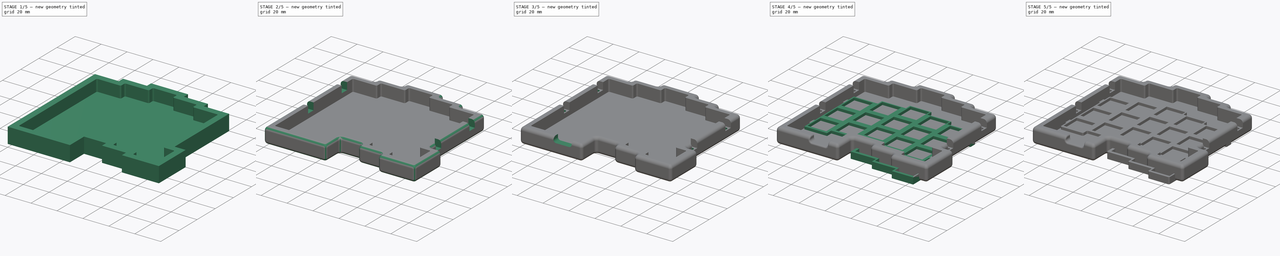
[diagram: build sequence overview — one tinted view per stage of 5, left to right]
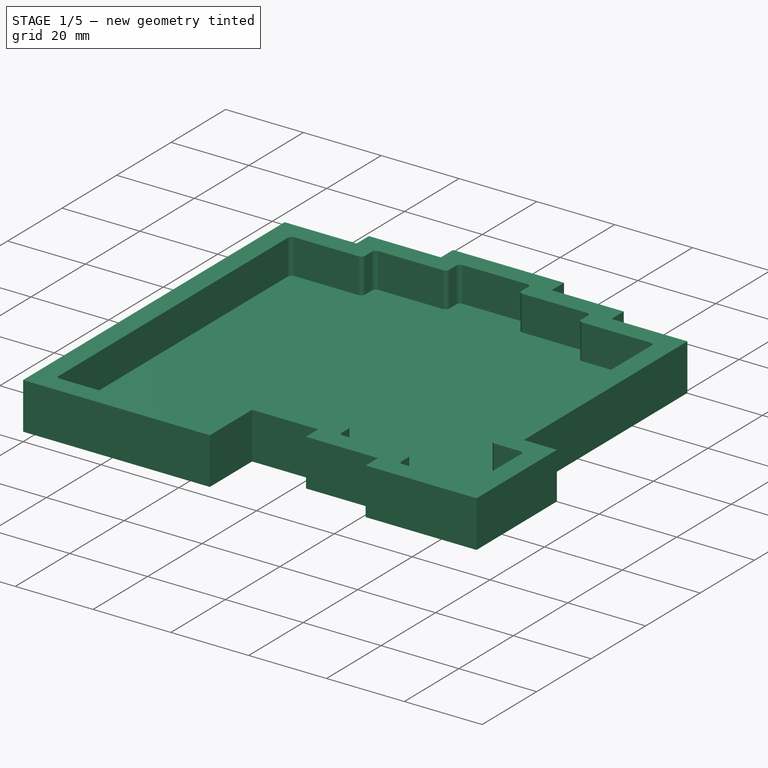
[diagram: stage 1 of 5 — iso view after this stage's code; geometry added in this stage tinted green]
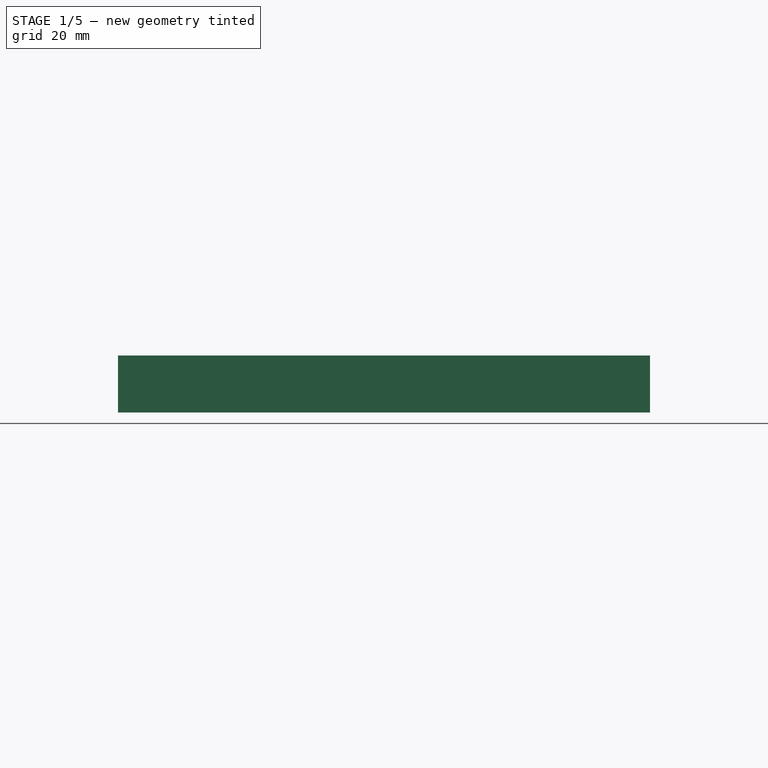
[diagram: stage 1 of 5 — front view after this stage's code; geometry added in this stage tinted green]
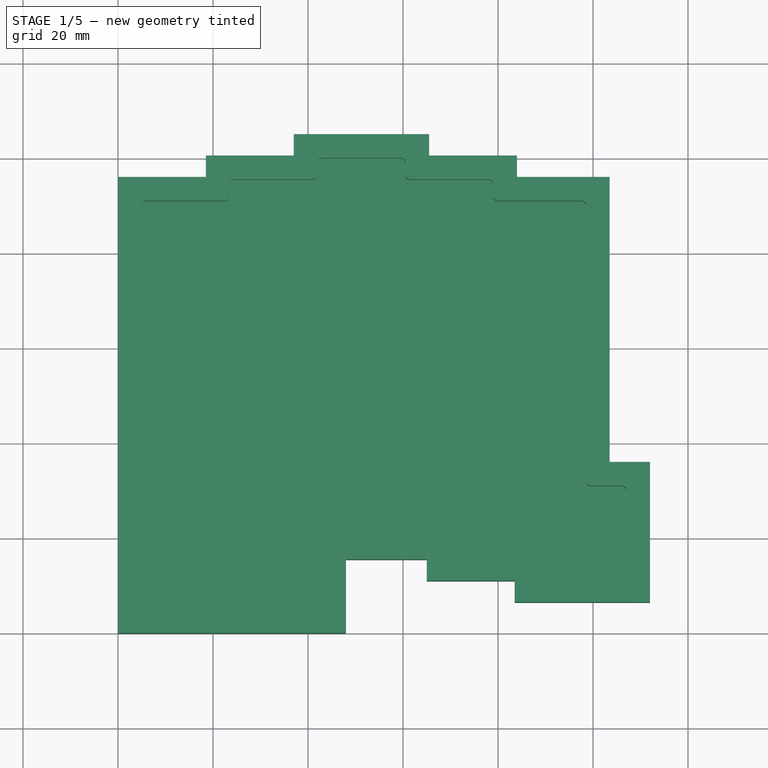
[diagram: stage 1 of 5 — top view after this stage's code; geometry added in this stage tinted green]
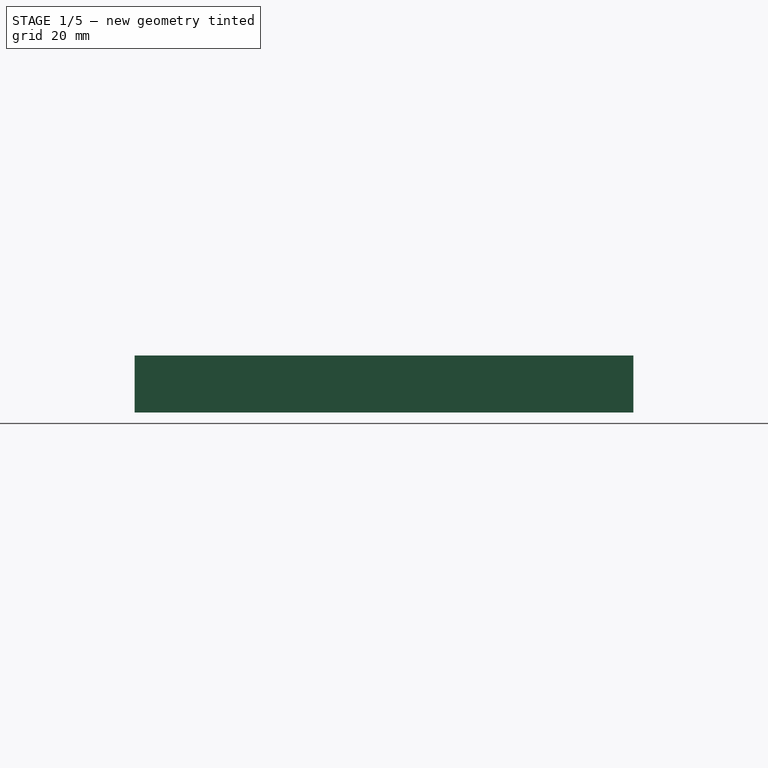
[diagram: stage 1 of 5 — right view after this stage's code; geometry added in this stage tinted green]
FCSTD DOCUMENT  (FreeCAD 0.19R)
Label: cheap03xD
License: All rights reserved
LicenseURL: http://en.wikipedia.org/wiki/All_rights_reserved
objects: Sketcher::SketchObject×9, PartDesign::Pocket×7, PartDesign::Fillet×7, PartDesign::Pad×2, PartDesign::Body×2
note: 43 computed .brp shape members not serialized (recipe doc carries the construction recipe); baked Part::Feature solids carry a one-line shape summary decoded from their .brp

FEATURE [Sketcher::SketchObject] Sketch
  FullyConstrained = true
  MapMode = 5
  Support = -> [XY_Plane]
  expr: Constraints[2] = 84 + 2 + 10
  expr: Constraints[5] = 48
  sketch-geometry (20):
    g0: LineSegment StartX=0 StartY=0 StartZ=0 EndX=0 EndY=96 EndZ=0
    g1: LineSegment StartX=0 StartY=0 StartZ=0 EndX=48 EndY=0 EndZ=0
    g2: LineSegment StartX=48 StartY=0 StartZ=0 EndX=48 EndY=15.5 EndZ=0
    g3: LineSegment StartX=48 StartY=15.5 StartZ=0 EndX=65 EndY=15.5 EndZ=0
    g4: LineSegment StartX=65 StartY=15.5 StartZ=0 EndX=65 EndY=11 EndZ=0
    g5: LineSegment StartX=65 StartY=11 StartZ=0 EndX=83.5 EndY=11 EndZ=0
    g6: LineSegment StartX=83.5 StartY=11 StartZ=0 EndX=83.5 EndY=6.5 EndZ=0
    g7: LineSegment StartX=83.5 StartY=6.5 StartZ=0 EndX=112 EndY=6.5 EndZ=0
    g8: LineSegment StartX=112 StartY=6.5 StartZ=0 EndX=112 EndY=36 EndZ=0
    g9: LineSegment StartX=112 StartY=36 StartZ=0 EndX=103.5 EndY=36 EndZ=0
    g10: LineSegment StartX=103.5 StartY=36 StartZ=0 EndX=103.5 EndY=96 EndZ=0
    g11: LineSegment StartX=103.5 StartY=96 StartZ=0 EndX=84 EndY=96 EndZ=0
    g12: LineSegment StartX=0 StartY=96 StartZ=0 EndX=18.5 EndY=96 EndZ=0
    g13: LineSegment StartX=18.5 StartY=96 StartZ=0 EndX=18.5 EndY=100.5 EndZ=0
    g14: LineSegment StartX=84 StartY=96 StartZ=0 EndX=84 EndY=100.5 EndZ=0
    g15: LineSegment StartX=18.5 StartY=100.5 StartZ=0 EndX=37 EndY=100.5 EndZ=0
    g16: LineSegment StartX=84 StartY=100.5 StartZ=0 EndX=65.5 EndY=100.5 EndZ=0
    g17: LineSegment StartX=37 StartY=100.5 StartZ=0 EndX=37 EndY=105 EndZ=0
    g18: LineSegment StartX=37 StartY=105 StartZ=0 EndX=65.5 EndY=105 EndZ=0
    g19: LineSegment StartX=65.5 StartY=105 StartZ=0 EndX=65.5 EndY=100.5 EndZ=0
  constraints (59):
    c: Coincident(g0,g-1)
    c: Vertical(g0)
    c: DistanceY(g0,g0) = 96
    c: Coincident(g1,g0)
    c: PointOnObject(g1,g-1)
    c: DistanceX(g1,g1) = 48
    c: Coincident(g2,g1)
    c: Vertical(g2)
    c: DistanceY(g2,g2) = 15.5
    c: Coincident(g3,g2)
    c: Horizontal(g3)
    c: DistanceX(g3,g3) = 17
    c: Coincident(g4,g3)
    c: Vertical(g4)
    c: DistanceY(g4,g4) = 4.5
    c: Coincident(g5,g4)
    c: Horizontal(g5)
    c: DistanceX(g5,g5) = 18.5
    c: Coincident(g6,g5)
    c: Vertical(g6)
    c: Equal(g6,g4)
    c: Coincident(g7,g6)
    c: Horizontal(g7)
    c: DistanceX(g7,g7) = 28.5
    c: Coincident(g8,g7)
    c: Vertical(g8)
    c: Coincident(g9,g8)
    c: Horizontal(g9)
    c: DistanceX(g9,g9) = 8.5
    c: Coincident(g10,g9)
    c: Vertical(g10)
    c: DistanceY(g10,g10) = 60
    c: Coincident(g11,g10)
    c: Horizontal(g11)
    c: DistanceX(g11,g11) = 19.5
    c: Coincident(g12,g0)
    c: Horizontal(g12)
    c: DistanceX(g12,g12) = 18.5
    c: Coincident(g13,g12)
    c: Vertical(g13)
    c: Coincident(g14,g11)
    c: Vertical(g14)
    c: Coincident(g15,g13)
    c: Horizontal(g15)
    c: Coincident(g16,g14)
    c: Horizontal(g16)
    c: Coincident(g17,g15)
    c: Vertical(g17)
    c: Coincident(g18,g17)
    c: Horizontal(g18)
    c: Coincident(g19,g18)
    c: Coincident(g19,g16)
    c: Vertical(g19)
    c: Equal(g19,g17)
    c: Equal(g17,g13)
    c: Equal(g13,g4)
    c: DistanceY(g8,g8) = 29.5
    c: Equal(g16,g15)
    c: Equal(g15,g12)
FEATURE [PartDesign::Pad] Pad
  Direction = (1,1,1)
  Length = 12
  Length2 = 100
  Profile = -> Sketch
  Type = 0
FEATURE [Sketcher::SketchObject] Sketch001
  FullyConstrained = true
  MapMode = 5
  Placement = pos=(0,0,12) rot=(0,0,1;0rad)
  Support = -> [Pad]
  sketch-geometry (22):
    g0: LineSegment StartX=0 StartY=0 StartZ=0 EndX=5 EndY=0 EndZ=0
    g1: LineSegment StartX=5 StartY=0 StartZ=0 EndX=5 EndY=5 EndZ=0
    g2: LineSegment StartX=5 StartY=5 StartZ=0 EndX=43 EndY=5 EndZ=0
    g3: LineSegment StartX=43 StartY=5 StartZ=0 EndX=43 EndY=20.5 EndZ=0
    g4: LineSegment StartX=43 StartY=20.5 StartZ=0 EndX=70 EndY=20.5 EndZ=0
    g5: LineSegment StartX=70 StartY=20.5 StartZ=0 EndX=70 EndY=16 EndZ=0
    g6: LineSegment StartX=70 StartY=16 StartZ=0 EndX=88.5 EndY=16 EndZ=0
    g7: LineSegment StartX=88.5 StartY=16 StartZ=0 EndX=88.5 EndY=11.5 EndZ=0
    g8: LineSegment StartX=88.5 StartY=11.5 StartZ=0 EndX=107 EndY=11.5 EndZ=0
    g9: LineSegment StartX=107 StartY=11.5 StartZ=0 EndX=107 EndY=31 EndZ=0
    g10: LineSegment StartX=107 StartY=31 StartZ=0 EndX=98.5 EndY=31 EndZ=0
    g11: LineSegment StartX=98.5 StartY=31 StartZ=0 EndX=98.5 EndY=91 EndZ=0
    g12: LineSegment StartX=98.5 StartY=91 StartZ=0 EndX=79 EndY=91 EndZ=0
    g13: LineSegment StartX=79 StartY=91 StartZ=0 EndX=79 EndY=95.5 EndZ=0
    g14: LineSegment StartX=79 StartY=95.5 StartZ=0 EndX=60.5 EndY=95.5 EndZ=0
    g15: LineSegment StartX=60.5 StartY=95.5 StartZ=0 EndX=60.5 EndY=100 EndZ=0
    g16: LineSegment StartX=60.5 StartY=100 StartZ=0 EndX=42 EndY=100 EndZ=0
    g17: LineSegment StartX=42 StartY=100 StartZ=0 EndX=42 EndY=95.5 EndZ=0
    g18: LineSegment StartX=42 StartY=95.5 StartZ=0 EndX=23.5 EndY=95.5 EndZ=0
    g19: LineSegment StartX=23.5 StartY=95.5 StartZ=0 EndX=23.5 EndY=91 EndZ=0
    g20: LineSegment StartX=23.5 StartY=91 StartZ=0 EndX=5 EndY=91 EndZ=0
    g21: LineSegment StartX=5 StartY=91 StartZ=0 EndX=5 EndY=5 EndZ=0
  constraints (65):
    c: Coincident(g0,g-1)
    c: PointOnObject(g0,g-1)
    c: Coincident(g1,g0)
    c: Vertical(g1)
    c: Equal(g0,g1)
    c: DistanceX(g0,g0) = 5
    c: Coincident(g2,g1)
    c: Horizontal(g2)
    c: DistanceX(g2,g2) = 38
    c: Coincident(g3,g2)
    c: Vertical(g3)
    c: Coincident(g4,g3)
    c: Horizontal(g4)
    c: Coincident(g5,g4)
    c: Vertical(g5)
    c: Coincident(g6,g5)
    c: Horizontal(g6)
    c: Coincident(g7,g6)
    c: Vertical(g7)
    c: Coincident(g8,g7)
    c: Horizontal(g8)
    c: Coincident(g9,g8)
    c: Vertical(g9)
    c: Coincident(g10,g9)
    c: Horizontal(g10)
    c: Coincident(g11,g10)
    c: Vertical(g11)
    c: Coincident(g12,g11)
    c: Horizontal(g12)
    c: Coincident(g13,g12)
    c: Vertical(g13)
    c: Coincident(g14,g13)
    c: Horizontal(g14)
    c: Coincident(g15,g14)
    c: Vertical(g15)
    c: Coincident(g16,g15)
    c: Horizontal(g16)
    c: Coincident(g17,g16)
    c: Vertical(g17)
    c: Coincident(g18,g17)
    c: Horizontal(g18)
    c: Coincident(g19,g18)
    c: Vertical(g19)
    c: Coincident(g20,g19)
    c: Horizontal(g20)
    c: Coincident(g21,g20)
    c: Coincident(g21,g2)
    c: Vertical(g21)
    c: Equal(g5,g7)
    c: Equal(g7,g19)
    c: Equal(g19,g17)
    c: Equal(g17,g15)
    c: Equal(g15,g13)
    c: DistanceY(g19,g19) = 4.5
    c: Equal(g20,g18)
    c: Equal(g18,g14)
    c: Equal(g14,g6)
    c: DistanceY(g3,g3) = 15.5
    c: DistanceX(g4,g4) = 27
    c: DistanceX(g6,g6) = 18.5
    c: Equal(g8,g6)
    c: DistanceY(g9,g9) = 19.5
    c: DistanceX(g10,g10) = 8.5
    c: DistanceY(g11,g11) = 60
    c: DistanceX(g12,g12) = 19.5
FEATURE [PartDesign::Pocket] Pocket
  BaseFeature = -> Pad
  Length = 9
  Length2 = 100
  Profile = -> Sketch001
  Type = 0
FEATURE [PartDesign::Fillet] Fillet
  Base = -> Pocket [Edge116,Edge114,Edge110,Edge106,Edge102,Edge82,Edge112,Edge108,Edge104,Edge100,Edge98,Edge96,Edge94,Edge92,Edge90,Edge88,Edge86,Edge84,Edge81,Edge118]
  BaseFeature = -> Pocket
  Radius = 1
  SupportTransform = false
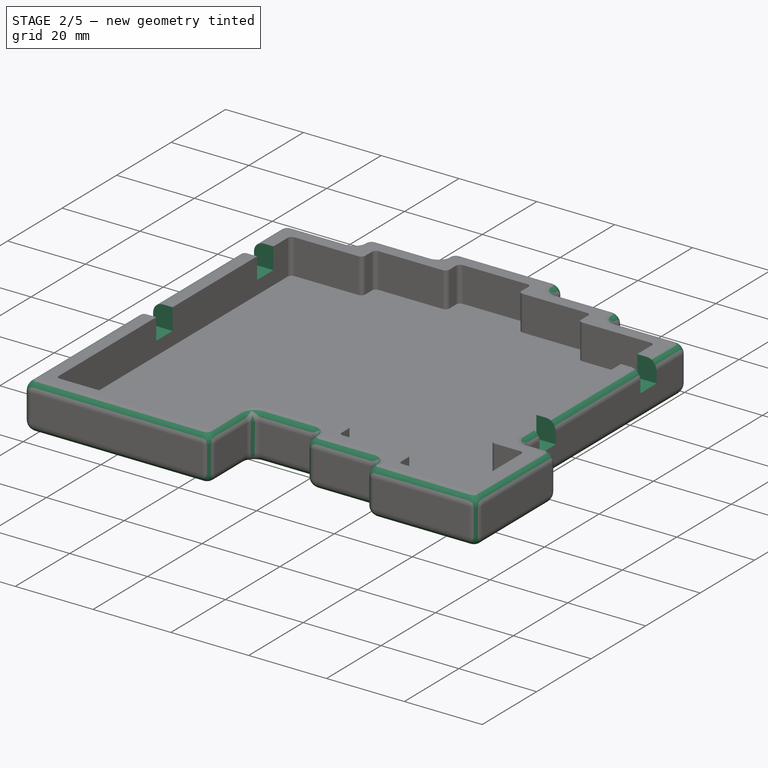
[diagram: stage 2 of 5 — iso view after this stage's code; geometry added in this stage tinted green]
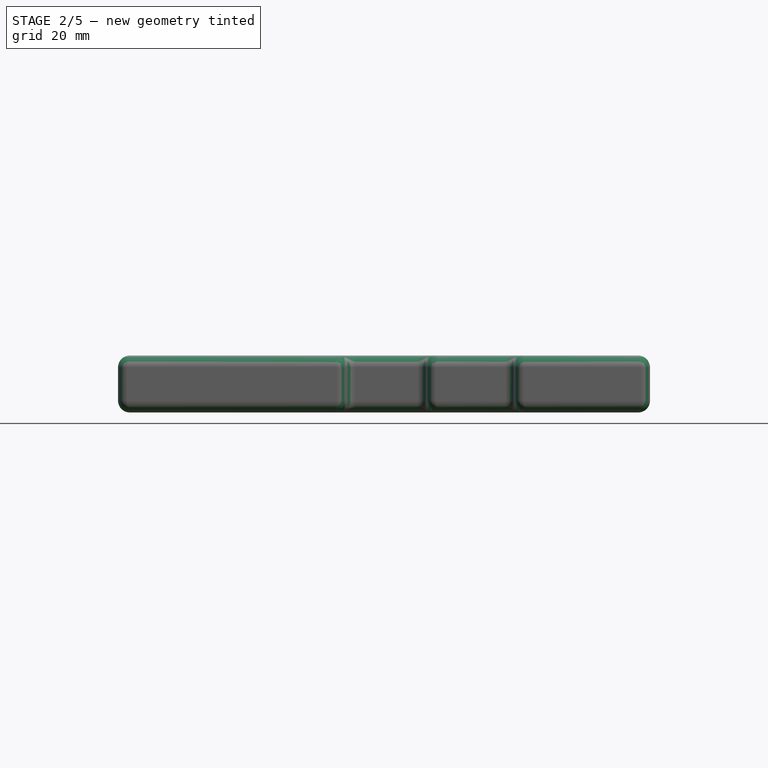
[diagram: stage 2 of 5 — front view after this stage's code; geometry added in this stage tinted green]
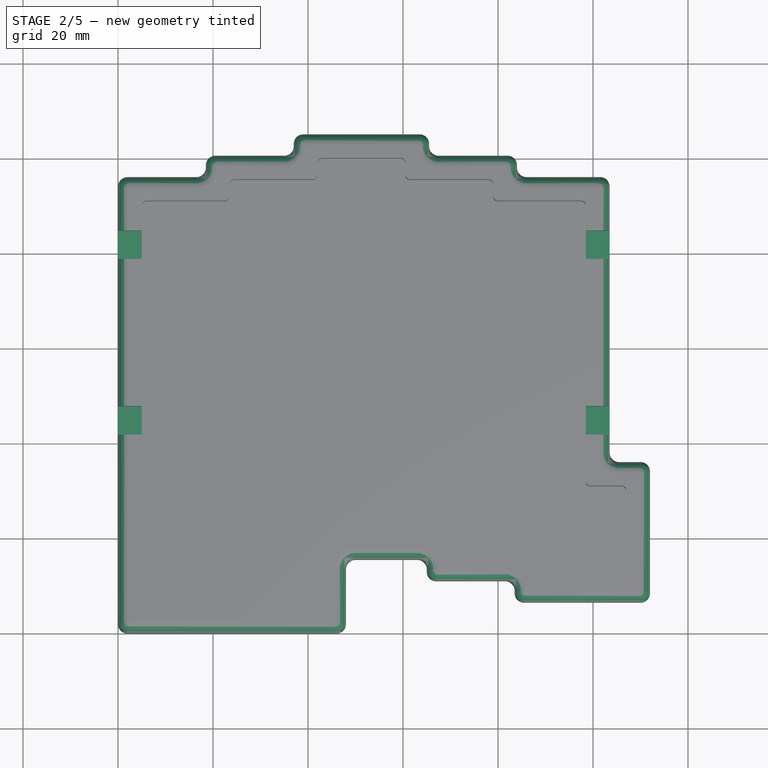
[diagram: stage 2 of 5 — top view after this stage's code; geometry added in this stage tinted green]
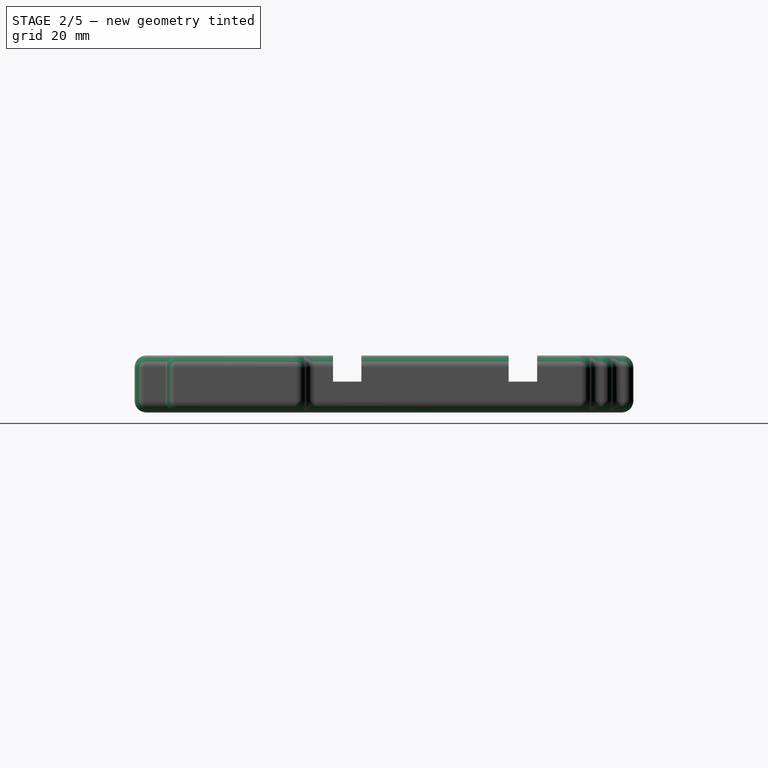
[diagram: stage 2 of 5 — right view after this stage's code; geometry added in this stage tinted green]
FEATURE [PartDesign::Fillet] Fillet001
  Base = -> Fillet [Edge148,Edge152,Edge156,Edge160,Edge164,Edge144,Edge168,Edge141,Edge172,Edge176,Edge178,Edge174,Edge170,Edge166,Edge162,Edge158,Edge154,Edge150,Edge146,Edge142]
  BaseFeature = -> Fillet
  Radius = 2
  SupportTransform = false
FEATURE [PartDesign::Fillet] Fillet002
  Base = -> Fillet001 [Edge28,Edge136]
  BaseFeature = -> Fillet001
  Radius = 2.5
  SupportTransform = false
FEATURE [Sketcher::SketchObject] Sketch002
  FullyConstrained = true
  MapMode = 5
  Placement = pos=(0,0,12) rot=(0,0,1;0rad)
  Support = -> [Fillet002]
  sketch-geometry (30):
    g0: LineSegment StartX=0 StartY=0 StartZ=0 EndX=2.5 EndY=0 EndZ=0
    g1: LineSegment StartX=2.5 StartY=0 StartZ=0 EndX=2.5 EndY=44.75 EndZ=0
    g2: LineSegment StartX=2.5 StartY=44.75 StartZ=0 EndX=2.5 EndY=81.75 EndZ=0
    g3: LineSegment StartX=2.5 StartY=81.75 StartZ=0 EndX=101 EndY=81.75 EndZ=0
    g4: LineSegment StartX=2.5 StartY=44.75 StartZ=0 EndX=101 EndY=44.75 EndZ=0
    g5: LineSegment StartX=98.5 StartY=84.75 StartZ=0 EndX=98.5 EndY=78.75 EndZ=0
    g6: LineSegment StartX=98.5 StartY=78.75 StartZ=0 EndX=103.5 EndY=78.75 EndZ=0
    g7: LineSegment StartX=103.5 StartY=78.75 StartZ=0 EndX=103.5 EndY=84.75 EndZ=0
    g8: LineSegment StartX=98.5 StartY=84.75 StartZ=0 EndX=103.5 EndY=84.75 EndZ=0
    g9: LineSegment StartX=101 StartY=81.75 StartZ=0 EndX=103.5 EndY=84.75 EndZ=0
    g10: LineSegment StartX=101 StartY=81.75 StartZ=0 EndX=103.5 EndY=78.75 EndZ=0
    g11: LineSegment StartX=101 StartY=81.75 StartZ=0 EndX=98.5 EndY=78.75 EndZ=0
    g12: LineSegment StartX=98.5 StartY=41.75 StartZ=0 EndX=98.5 EndY=47.75 EndZ=0
    g13: LineSegment StartX=98.5 StartY=47.75 StartZ=0 EndX=103.5 EndY=47.75 EndZ=0
    g14: LineSegment StartX=98.5 StartY=41.75 StartZ=0 EndX=103.5 EndY=41.75 EndZ=0
    g15: LineSegment StartX=103.5 StartY=41.75 StartZ=0 EndX=103.5 EndY=47.75 EndZ=0
    g16: LineSegment StartX=101 StartY=44.75 StartZ=0 EndX=103.5 EndY=47.75 EndZ=0
    g17: LineSegment StartX=101 StartY=44.75 StartZ=0 EndX=103.5 EndY=41.75 EndZ=0
    g18: LineSegment StartX=3e-16 StartY=47.75 StartZ=0 EndX=5 EndY=47.75 EndZ=0
    g19: LineSegment StartX=5 StartY=47.75 StartZ=0 EndX=5 EndY=41.75 EndZ=0
    g20: LineSegment StartX=5 StartY=41.75 StartZ=0 EndX=0 EndY=41.75 EndZ=0
    g21: LineSegment StartX=3e-16 StartY=41.75 StartZ=0 EndX=3e-16 EndY=47.75 EndZ=0
    g22: LineSegment StartX=2.5 StartY=44.75 StartZ=0 EndX=5 EndY=47.75 EndZ=0
    g23: LineSegment StartX=2.5 StartY=44.75 StartZ=0 EndX=5 EndY=41.75 EndZ=0
    g24: LineSegment StartX=3.1e-15 StartY=84.75 StartZ=0 EndX=5 EndY=84.75 EndZ=0
    g25: LineSegment StartX=5 StartY=84.75 StartZ=0 EndX=5 EndY=78.75 EndZ=0
    g26: LineSegment StartX=5 StartY=78.75 StartZ=0 EndX=2.7e-15 EndY=78.75 EndZ=0
    g27: LineSegment StartX=3.1e-15 StartY=78.75 StartZ=0 EndX=3.1e-15 EndY=84.75 EndZ=0
    g28: LineSegment StartX=2.5 StartY=81.75 StartZ=0 EndX=5 EndY=84.75 EndZ=0
    g29: LineSegment StartX=2.5 StartY=81.75 StartZ=0 EndX=5 EndY=78.75 EndZ=0
  constraints (81):
    c: Coincident(g0,g-1)
    c: PointOnObject(g0,g-1)
    c: DistanceX(g0,g0) = 2.5
    c: Coincident(g1,g0)
    c: Vertical(g1)
    c: DistanceY(g1,g1) = 44.75
    c: Coincident(g2,g1)
    c: Vertical(g2)
    c: DistanceY(g2,g2) = 37
    c: Coincident(g3,g2)
    c: Horizontal(g3)
    c: DistanceX(g3,g3) = 98.5
    c: Coincident(g4,g1)
    c: Horizontal(g4)
    c: Equal(g4,g3)
    c: Vertical(g5)
    c: Coincident(g6,g5)
    c: Horizontal(g6)
    c: Coincident(g7,g6)
    c: Vertical(g7)
    c: Coincident(g8,g5)
    c: Coincident(g8,g7)
    c: Horizontal(g8)
    c: DistanceY(g7,g7) = 6
    c: DistanceX(g6,g6) = 5
    c: Coincident(g9,g3)
    c: Coincident(g9,g7)
    c: Coincident(g10,g3)
    c: Coincident(g10,g6)
    c: Coincident(g11,g3)
    c: Coincident(g11,g5)
    c: Equal(g11,g10)
    c: Equal(g10,g9)
    c: Vertical(g12)
    c: Coincident(g13,g12)
    c: Horizontal(g13)
    c: Coincident(g14,g12)
    c: Horizontal(g14)
    c: Coincident(g15,g14)
    c: Coincident(g15,g13)
    c: Vertical(g15)
    c: Equal(g13,g6)
    c: Equal(g15,g7)
    c: Coincident(g16,g4)
    c: Coincident(g16,g13)
    c: Coincident(g17,g4)
    c: Coincident(g17,g14)
    c: Equal(g17,g16)
    c: Equal(g16,g9)
    c: Horizontal(g18)
    c: Coincident(g19,g18)
    c: Vertical(g19)
    c: Coincident(g20,g19)
    c: Coincident(g21,g20)
    c: Coincident(g21,g18)
    c: Vertical(g21)
    c: Horizontal(g20)
    c: Coincident(g22,g1)
    c: Coincident(g22,g18)
    c: Coincident(g23,g1)
    c: Coincident(g23,g19)
    c: Horizontal(g24)
    c: Coincident(g25,g24)
    c: Vertical(g25)
    c: Coincident(g26,g25)
    c: Horizontal(g26)
    c: Coincident(g27,g26)
    c: Coincident(g27,g24)
    c: Vertical(g27)
    c: Coincident(g28,g2)
    c: Coincident(g28,g24)
    c: Coincident(g29,g2)
    c: Coincident(g29,g25)
    c: Equal(g28,g29)
    c: Equal(g29,g22)
    c: Equal(g22,g23)
    c: Equal(g23,g9)
    c: Equal(g25,g19)
    c: Equal(g19,g15)
    c: Equal(g14,g20)
    c: Equal(g20,g26)
FEATURE [PartDesign::Pocket] Pocket001
  BaseFeature = -> Fillet002
  Length = 5.5
  Length2 = 100
  Profile = -> Sketch002
  Type = 0
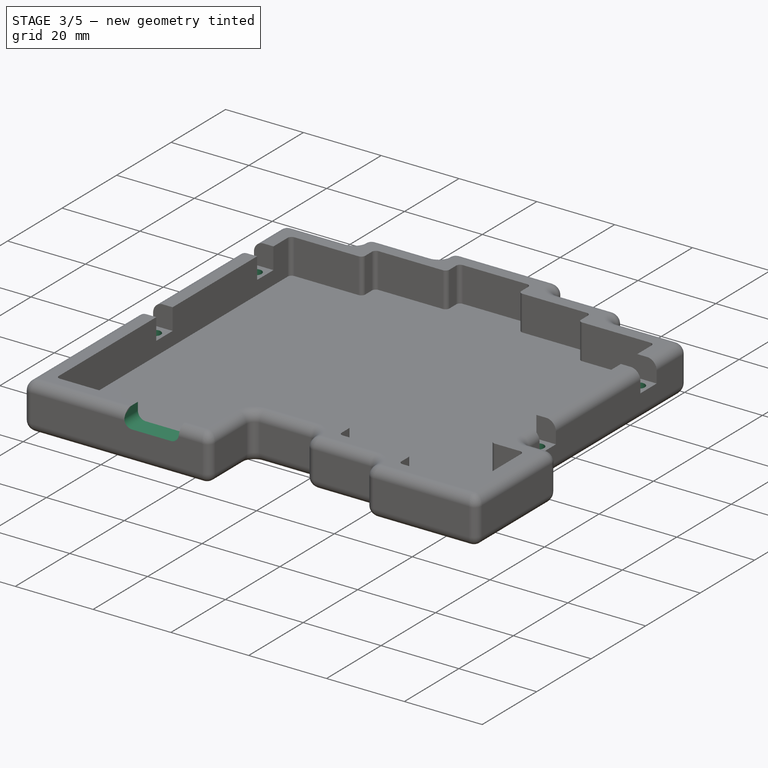
[diagram: stage 3 of 5 — iso view after this stage's code; geometry added in this stage tinted green]
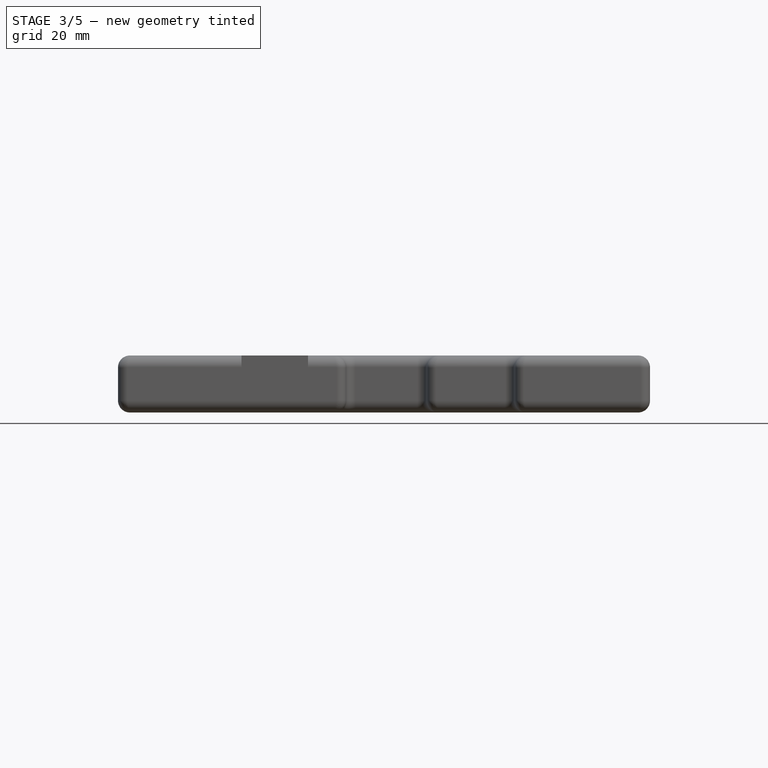
[diagram: stage 3 of 5 — front view after this stage's code; geometry added in this stage tinted green]
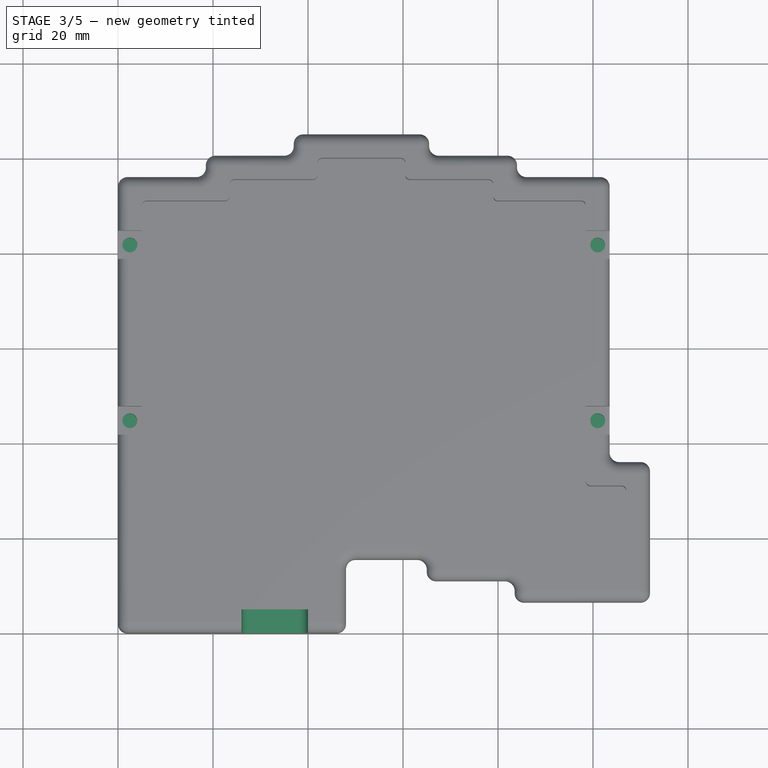
[diagram: stage 3 of 5 — top view after this stage's code; geometry added in this stage tinted green]
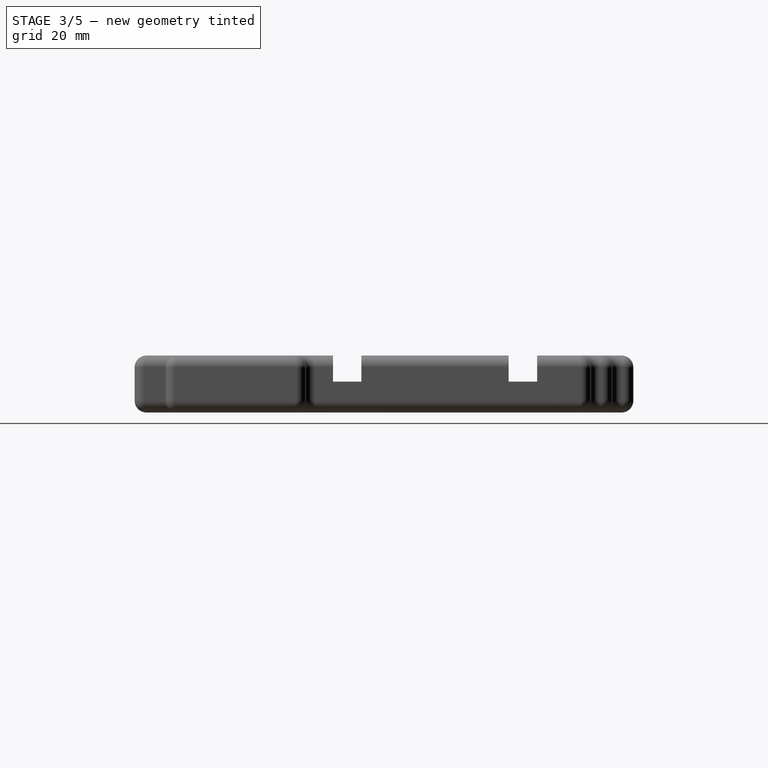
[diagram: stage 3 of 5 — right view after this stage's code; geometry added in this stage tinted green]
FEATURE [Sketcher::SketchObject] Sketch003
  FullyConstrained = true
  MapMode = 5
  Placement = pos=(0,0,6.5) rot=(0,0,1;0rad)
  Support = -> [Pocket001]
  sketch-geometry (9):
    g0: LineSegment StartX=0 StartY=0 StartZ=0 EndX=2.5 EndY=0 EndZ=0
    g1: LineSegment StartX=2.5 StartY=0 StartZ=0 EndX=2.5 EndY=44.75 EndZ=0
    g2: LineSegment StartX=2.5 StartY=44.75 StartZ=0 EndX=2.5 EndY=81.75 EndZ=0
    g3: LineSegment StartX=2.5 StartY=81.75 StartZ=0 EndX=101 EndY=81.75 EndZ=0
    g4: LineSegment StartX=2.5 StartY=44.75 StartZ=0 EndX=101 EndY=44.75 EndZ=0
    g5: Circle CenterX=2.5 CenterY=44.75 CenterZ=0 NormalX=0 NormalY=0 NormalZ=1 AngleXU=0 Radius=1.55
    g6: Circle CenterX=2.5 CenterY=81.75 CenterZ=0 NormalX=0 NormalY=0 NormalZ=1 AngleXU=0 Radius=1.55
    g7: Circle CenterX=101 CenterY=81.75 CenterZ=0 NormalX=0 NormalY=0 NormalZ=1 AngleXU=0 Radius=1.55
    g8: Circle CenterX=101 CenterY=44.75 CenterZ=0 NormalX=0 NormalY=0 NormalZ=1 AngleXU=0 Radius=1.55
  constraints (23):
    c: Coincident(g0,g-1)
    c: DistanceX(g0,g0) = 2.5
    c: Horizontal(g0)
    c: Coincident(g1,g0)
    c: Vertical(g1)
    c: Coincident(g2,g1)
    c: Vertical(g2)
    c: Coincident(g3,g2)
    c: Horizontal(g3)
    c: DistanceY(g1,g1) = 44.75
    c: DistanceY(g2,g2) = 37
    c: DistanceX(g3,g3) = 98.5
    c: Coincident(g4,g1)
    c: Horizontal(g4)
    c: Equal(g4,g3)
    c: Coincident(g5,g1)
    c: Diameter(g5) = 3.1
    c: Coincident(g6,g2)
    c: Coincident(g7,g3)
    c: Coincident(g8,g4)
    c: Equal(g8,g7)
    c: Equal(g7,g6)
    c: Equal(g6,g5)
FEATURE [PartDesign::Pocket] Pocket002
  BaseFeature = -> Pocket001
  Length = 5
  Length2 = 100
  Profile = -> Sketch003
  Type = 0
FEATURE [Sketcher::SketchObject] Sketch004
  FullyConstrained = true
  MapMode = 5
  Placement = pos=(0,0,0) rot=(1,0,0;3.14159rad)
  Support = -> [Pocket002]
  sketch-geometry (10):
    g0: LineSegment StartX=0 StartY=0 StartZ=0 EndX=6 EndY=0 EndZ=0
    g1: LineSegment StartX=6 StartY=0 StartZ=0 EndX=6 EndY=-6 EndZ=0
    g2: Circle CenterX=6 CenterY=-6 CenterZ=0 NormalX=0 NormalY=0 NormalZ=1 AngleXU=0 Radius=3.5
    g3: Circle CenterX=6 CenterY=-90 CenterZ=0 NormalX=0 NormalY=0 NormalZ=1 AngleXU=0 Radius=3.5
    g4: Circle CenterX=106 CenterY=-12.5 CenterZ=0 NormalX=0 NormalY=0 NormalZ=1 AngleXU=0 Radius=3.5
    g5: Circle CenterX=97.5 CenterY=-90 CenterZ=0 NormalX=0 NormalY=0 NormalZ=1 AngleXU=0 Radius=3.5
    g6: LineSegment StartX=6 StartY=-6 StartZ=0 EndX=6 EndY=-90 EndZ=0
    g7: LineSegment StartX=6 StartY=-90 StartZ=0 EndX=97.5 EndY=-90 EndZ=0
    g8: LineSegment StartX=6 StartY=-6 StartZ=0 EndX=106 EndY=-6 EndZ=0
    g9: LineSegment StartX=106 StartY=-6 StartZ=0 EndX=106 EndY=-12.5 EndZ=0
  constraints (26):
    c: Coincident(g0,g-1)
    c: PointOnObject(g0,g-1)
    c: Coincident(g1,g0)
    c: Vertical(g1)
    c: Equal(g0,g1)
    c: DistanceX(g0,g0) = 6
    c: Coincident(g2,g1)
    c: Diameter(g2) = 7
    c: Equal(g3,g4)
    c: Equal(g4,g5)
    c: Equal(g5,g2)
    c: Coincident(g6,g2)
    c: Coincident(g6,g3)
    c: Vertical(g6)
    c: Coincident(g7,g3)
    c: Coincident(g7,g5)
    c: Horizontal(g7)
    c: DistanceY(g6,g6) = 84
    c: DistanceX(g7,g7) = 91.5
    c: Coincident(g8,g2)
    c: Horizontal(g8)
    c: Coincident(g9,g8)
    c: Coincident(g9,g4)
    c: Vertical(g9)
    c: DistanceY(g9,g9) = 6.5
    c: DistanceX(g8,g8) = 100
FEATURE [PartDesign::Pocket] Pocket003
  BaseFeature = -> Pocket002
  Length = 1
  Length2 = 100
  Profile = -> Sketch004
  Type = 0
FEATURE [PartDesign::Body] Body001  label="Plate"
  Group = -> [Sketch005,Pad001,Fillet003,Sketch006,Pocket004,Sketch007,Pocket005,Fillet004]
  Origin = -> Origin001
  Placement = pos=(0,12.5,7) rot=(0,0,1;0rad)
  Tip = -> Fillet004
FEATURE [Sketcher::SketchObject] Sketch008
  FullyConstrained = true
  MapMode = 5
  Placement = pos=(0,0,12) rot=(0,0,1;0rad)
  Support = -> [Pocket003]
  sketch-geometry (5):
    g0: LineSegment StartX=0 StartY=0 StartZ=0 EndX=40 EndY=0 EndZ=0
    g1: LineSegment StartX=40 StartY=0 StartZ=0 EndX=40 EndY=5 EndZ=0
    g2: LineSegment StartX=40 StartY=5 StartZ=0 EndX=26 EndY=5 EndZ=0
    g3: LineSegment StartX=26 StartY=5 StartZ=0 EndX=26 EndY=0 EndZ=0
    g4: LineSegment StartX=26 StartY=0 StartZ=0 EndX=40 EndY=0 EndZ=0
  constraints (14):
    c: Coincident(g0,g-1)
    c: PointOnObject(g0,g-1)
    c: DistanceX(g0,g0) = 40
    c: Coincident(g1,g0)
    c: Vertical(g1)
    c: Coincident(g2,g1)
    c: Horizontal(g2)
    c: DistanceX(g2,g2) = 14
    c: DistanceY(g1,g1) = 5
    c: Coincident(g3,g2)
    c: Vertical(g3)
    c: Coincident(g4,g3)
    c: Coincident(g4,g1)
    c: Horizontal(g4)
FEATURE [PartDesign::Pocket] Pocket006
  BaseFeature = -> Pocket003
  Length = 4
  Length2 = 100
  Profile = -> Sketch008
  Type = 0
FEATURE [PartDesign::Fillet] Fillet005
  Base = -> Pocket006 [Edge101,Edge220]
  BaseFeature = -> Pocket006
  Radius = 2
  SupportTransform = false
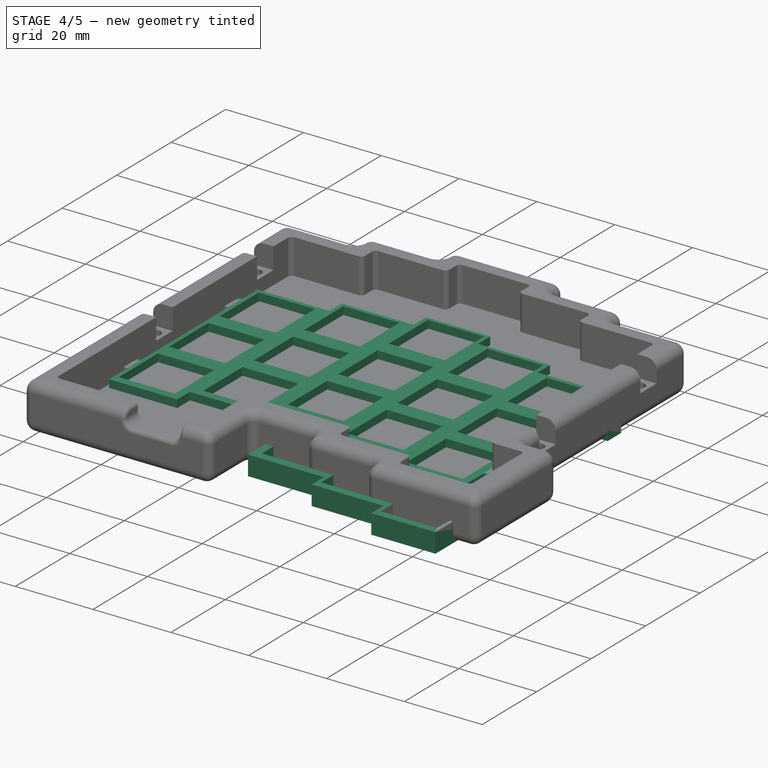
[diagram: stage 4 of 5 — iso view after this stage's code; geometry added in this stage tinted green]
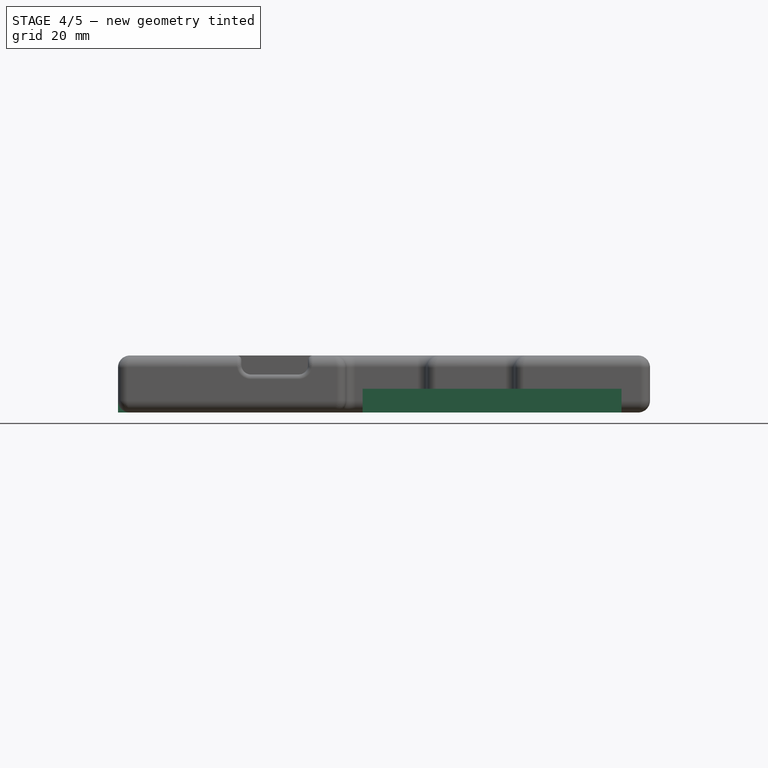
[diagram: stage 4 of 5 — front view after this stage's code; geometry added in this stage tinted green]
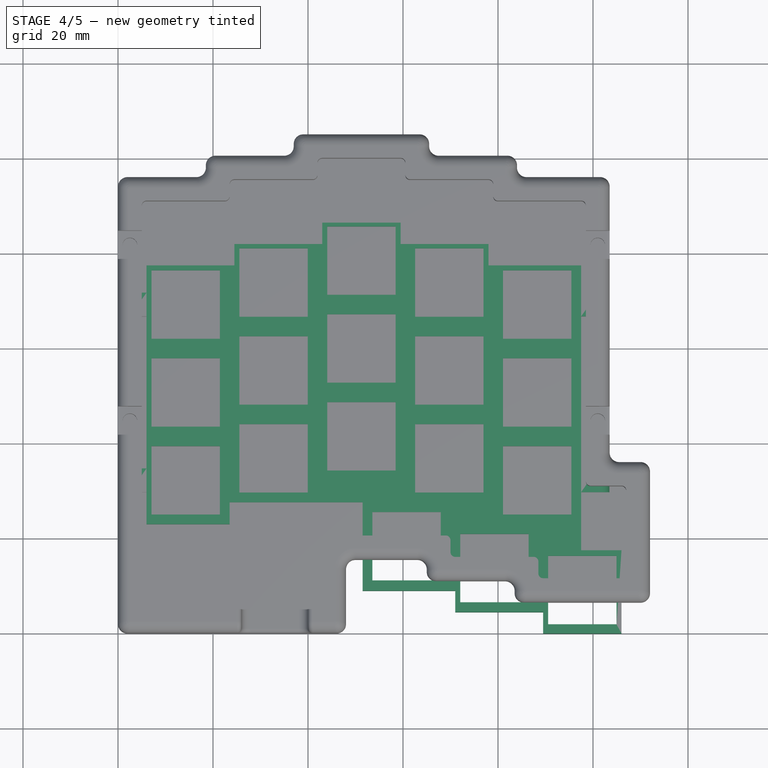
[diagram: stage 4 of 5 — top view after this stage's code; geometry added in this stage tinted green]
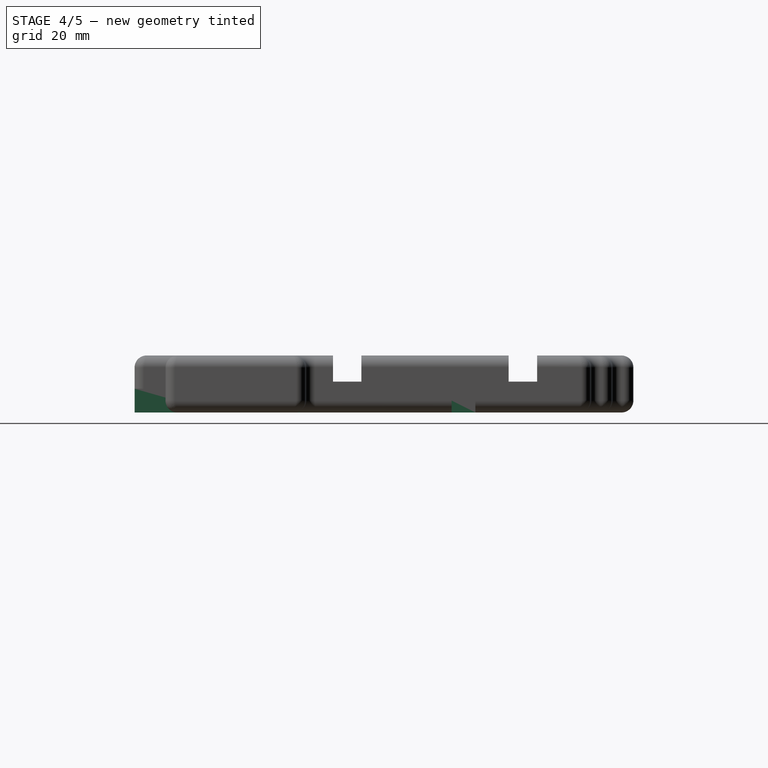
[diagram: stage 4 of 5 — right view after this stage's code; geometry added in this stage tinted green]
FEATURE [Sketcher::SketchObject] Sketch005
  FullyConstrained = true
  MapMode = 5
  Support = -> [XY_Plane001]
  expr: Constraints[407] = 32mm
  sketch-geometry (158):
    g0: LineSegment StartX=0 StartY=34.75 StartZ=0 EndX=0 EndY=29.75 EndZ=0
    g1: LineSegment StartX=0 StartY=34.75 StartZ=0 EndX=6 EndY=34.75 EndZ=0
    g2: LineSegment StartX=0 StartY=29.75 StartZ=0 EndX=6 EndY=29.75 EndZ=0
    g3: LineSegment StartX=0 StartY=71.75 StartZ=0 EndX=0 EndY=66.75 EndZ=0
    g4: LineSegment StartX=0 StartY=66.75 StartZ=0 EndX=6 EndY=66.75 EndZ=0
    g5: LineSegment StartX=0 StartY=71.75 StartZ=0 EndX=6 EndY=71.75 EndZ=0
    g6: LineSegment StartX=0 StartY=34.75 StartZ=0 EndX=0 EndY=71.75 EndZ=0
    g7: LineSegment StartX=6 StartY=66.75 StartZ=0 EndX=6 EndY=34.75 EndZ=0
    g8: LineSegment StartX=6 StartY=29.75 StartZ=0 EndX=6 EndY=23 EndZ=0
    g9: LineSegment StartX=6 StartY=34.75 StartZ=0 EndX=14.25 EndY=32.25 EndZ=0
    g10: LineSegment StartX=6 StartY=29.75 StartZ=0 EndX=14.25 EndY=32.25 EndZ=0
    g11: LineSegment StartX=14.25 StartY=32.25 StartZ=0 EndX=14.25 EndY=50.75 EndZ=0
    g12: LineSegment StartX=14.25 StartY=50.75 StartZ=0 EndX=14.25 EndY=69.25 EndZ=0
    g13: LineSegment StartX=14.25 StartY=69.25 StartZ=0 EndX=14.25 EndY=73.875 EndZ=0
    g14: LineSegment StartX=14.25 StartY=73.875 StartZ=0 EndX=32.75 EndY=73.875 EndZ=0
    g15: LineSegment StartX=32.75 StartY=73.875 StartZ=0 EndX=32.75 EndY=78.5 EndZ=0
    g16: LineSegment StartX=32.75 StartY=78.5 StartZ=0 EndX=51.25 EndY=78.5 EndZ=0
    g17: LineSegment StartX=51.25 StartY=78.5 StartZ=0 EndX=51.25 EndY=73.875 EndZ=0
    g18: LineSegment StartX=51.25 StartY=73.875 StartZ=0 EndX=69.75 EndY=73.875 EndZ=0
    g19: LineSegment StartX=69.75 StartY=73.875 StartZ=0 EndX=69.75 EndY=69.25 EndZ=0
    g20: LineSegment StartX=69.75 StartY=69.25 StartZ=0 EndX=88.25 EndY=69.25 EndZ=0
    g21: LineSegment StartX=32.75 StartY=73.875 StartZ=0 EndX=32.75 EndY=55.375 EndZ=0
    g22: LineSegment StartX=32.75 StartY=55.375 StartZ=0 EndX=32.75 EndY=36.875 EndZ=0
    g23: LineSegment StartX=88.25 StartY=69.25 StartZ=0 EndX=88.25 EndY=50.75 EndZ=0
    g24: LineSegment StartX=88.25 StartY=50.75 StartZ=0 EndX=88.25 EndY=32.25 EndZ=0
    g25: LineSegment StartX=51.25 StartY=78.5 StartZ=0 EndX=51.25 EndY=60 EndZ=0
    g26: LineSegment StartX=69.75 StartY=73.875 StartZ=0 EndX=69.75 EndY=55.375 EndZ=0
    g27: LineSegment StartX=51.25 StartY=60 StartZ=0 EndX=51.25 EndY=41.5 EndZ=0
    g28: LineSegment StartX=69.75 StartY=55.375 StartZ=0 EndX=69.75 EndY=36.875 EndZ=0
    g29: LineSegment StartX=21.45 StartY=57.95 StartZ=0 EndX=7.05 EndY=57.95 EndZ=0
    g30: LineSegment StartX=7.05 StartY=57.95 StartZ=0 EndX=7.05 EndY=43.55 EndZ=0
    g31: LineSegment StartX=7.05 StartY=43.55 StartZ=0 EndX=21.45 EndY=43.55 EndZ=0
    g32: LineSegment StartX=21.45 StartY=43.55 StartZ=0 EndX=21.45 EndY=57.95 EndZ=0
    g33: Circle CenterX=14.25 CenterY=50.75 CenterZ=0 NormalX=0 NormalY=0 NormalZ=1 AngleXU=0 Radius=10.1823
    g34: LineSegment StartX=21.45 StartY=39.45 StartZ=0 EndX=7.05 EndY=39.45 EndZ=0
    g35: LineSegment StartX=7.05 StartY=39.45 StartZ=0 EndX=7.05 EndY=25.05 EndZ=0
    g36: LineSegment StartX=7.05 StartY=25.05 StartZ=0 EndX=21.45 EndY=25.05 EndZ=0
    g37: LineSegment StartX=21.45 StartY=25.05 StartZ=0 EndX=21.45 EndY=39.45 EndZ=0
    g38: Circle CenterX=14.25 CenterY=32.25 CenterZ=0 NormalX=0 NormalY=0 NormalZ=1 AngleXU=0 Radius=10.1823
    g39: LineSegment StartX=21.45 StartY=76.45 StartZ=0 EndX=7.05 EndY=76.45 EndZ=0
    g40: LineSegment StartX=7.05 StartY=76.45 StartZ=0 EndX=7.05 EndY=62.05 EndZ=0
    g41: LineSegment StartX=7.05 StartY=62.05 StartZ=0 EndX=21.45 EndY=62.05 EndZ=0
    g42: LineSegment StartX=21.45 StartY=62.05 StartZ=0 EndX=21.45 EndY=76.45 EndZ=0
    g43: Circle CenterX=14.25 CenterY=69.25 CenterZ=0 NormalX=0 NormalY=0 NormalZ=1 AngleXU=0 Radius=10.1823
    g44: LineSegment StartX=39.95 StartY=81.075 StartZ=0 EndX=25.55 EndY=81.075 EndZ=0
    g45: LineSegment StartX=25.55 StartY=81.075 StartZ=0 EndX=25.55 EndY=66.675 EndZ=0
    g46: LineSegment StartX=25.55 StartY=66.675 StartZ=0 EndX=39.95 EndY=66.675 EndZ=0
    g47: LineSegment StartX=39.95 StartY=66.675 StartZ=0 EndX=39.95 EndY=81.075 EndZ=0
    g48: Circle CenterX=32.75 CenterY=73.875 CenterZ=0 NormalX=0 NormalY=0 NormalZ=1 AngleXU=0 Radius=10.1823
    g49: LineSegment StartX=39.95 StartY=62.575 StartZ=0 EndX=25.55 EndY=62.575 EndZ=0
    g50: LineSegment StartX=25.55 StartY=62.575 StartZ=0 EndX=25.55 EndY=48.175 EndZ=0
    g51: LineSegment StartX=25.55 StartY=48.175 StartZ=0 EndX=39.95 EndY=48.175 EndZ=0
    g52: LineSegment StartX=39.95 StartY=48.175 StartZ=0 EndX=39.95 EndY=62.575 EndZ=0
    g53: Circle CenterX=32.75 CenterY=55.375 CenterZ=0 NormalX=0 NormalY=0 NormalZ=1 AngleXU=0 Radius=10.1823
    g54: LineSegment StartX=39.95 StartY=44.075 StartZ=0 EndX=25.55 EndY=44.075 EndZ=0
    g55: LineSegment StartX=25.55 StartY=44.075 StartZ=0 EndX=25.55 EndY=29.675 EndZ=0
    g56: LineSegment StartX=25.55 StartY=29.675 StartZ=0 EndX=39.95 EndY=29.675 EndZ=0
    g57: LineSegment StartX=39.95 StartY=29.675 StartZ=0 EndX=39.95 EndY=44.075 EndZ=0
    g58: Circle CenterX=32.75 CenterY=36.875 CenterZ=0 NormalX=0 NormalY=0 NormalZ=1 AngleXU=0 Radius=10.1823
    g59: LineSegment StartX=58.45 StartY=48.7 StartZ=0 EndX=44.05 EndY=48.7 EndZ=0
    g60: LineSegment StartX=44.05 StartY=48.7 StartZ=0 EndX=44.05 EndY=34.3 EndZ=0
    g61: LineSegment StartX=44.05 StartY=34.3 StartZ=0 EndX=58.45 EndY=34.3 EndZ=0
    g62: LineSegment StartX=58.45 StartY=34.3 StartZ=0 EndX=58.45 EndY=48.7 EndZ=0
    g63: Circle CenterX=51.25 CenterY=41.5 CenterZ=0 NormalX=0 NormalY=0 NormalZ=1 AngleXU=0 Radius=10.1823
    g64: LineSegment StartX=58.45 StartY=67.2 StartZ=0 EndX=44.05 EndY=67.2 EndZ=0
    g65: LineSegment StartX=44.05 StartY=67.2 StartZ=0 EndX=44.05 EndY=52.8 EndZ=0
    g66: LineSegment StartX=44.05 StartY=52.8 StartZ=0 EndX=58.45 EndY=52.8 EndZ=0
    g67: LineSegment StartX=58.45 StartY=52.8 StartZ=0 EndX=58.45 EndY=67.2 EndZ=0
    g68: Circle CenterX=51.25 CenterY=60 CenterZ=0 NormalX=0 NormalY=0 NormalZ=1 AngleXU=0 Radius=10.1823
    g69: LineSegment StartX=58.45 StartY=85.7 StartZ=0 EndX=44.05 EndY=85.7 EndZ=0
    g70: LineSegment StartX=44.05 StartY=85.7 StartZ=0 EndX=44.05 EndY=71.3 EndZ=0
    g71: LineSegment StartX=44.05 StartY=71.3 StartZ=0 EndX=58.45 EndY=71.3 EndZ=0
    g72: LineSegment StartX=58.45 StartY=71.3 StartZ=0 EndX=58.45 EndY=85.7 EndZ=0
    g73: Circle CenterX=51.25 CenterY=78.5 CenterZ=0 NormalX=0 NormalY=0 NormalZ=1 AngleXU=0 Radius=10.1823
    g74: LineSegment StartX=76.95 StartY=81.075 StartZ=0 EndX=62.55 EndY=81.075 EndZ=0
    g75: LineSegment StartX=62.55 StartY=81.075 StartZ=0 EndX=62.55 EndY=66.675 EndZ=0
    g76: LineSegment StartX=62.55 StartY=66.675 StartZ=0 EndX=76.95 EndY=66.675 EndZ=0
    g77: LineSegment StartX=76.95 StartY=66.675 StartZ=0 EndX=76.95 EndY=81.075 EndZ=0
    g78: Circle CenterX=69.75 CenterY=73.875 CenterZ=0 NormalX=0 NormalY=0 NormalZ=1 AngleXU=0 Radius=10.1823
    g79: LineSegment StartX=95.45 StartY=76.45 StartZ=0 EndX=81.05 EndY=76.45 EndZ=0
    g80: LineSegment StartX=81.05 StartY=76.45 StartZ=0 EndX=81.05 EndY=62.05 EndZ=0
    g81: LineSegment StartX=81.05 StartY=62.05 StartZ=0 EndX=95.45 EndY=62.05 EndZ=0
    g82: LineSegment StartX=95.45 StartY=62.05 StartZ=0 EndX=95.45 EndY=76.45 EndZ=0
    g83: Circle CenterX=88.25 CenterY=69.25 CenterZ=0 NormalX=0 NormalY=0 NormalZ=1 AngleXU=0 Radius=10.1823
    g84: LineSegment StartX=76.95 StartY=62.575 StartZ=0 EndX=62.55 EndY=62.575 EndZ=0
    g85: LineSegment StartX=62.55 StartY=62.575 StartZ=0 EndX=62.55 EndY=48.175 EndZ=0
    g86: LineSegment StartX=62.55 StartY=48.175 StartZ=0 EndX=76.95 EndY=48.175 EndZ=0
    g87: LineSegment StartX=76.95 StartY=48.175 StartZ=0 EndX=76.95 EndY=62.575 EndZ=0
    g88: Circle CenterX=69.75 CenterY=55.375 CenterZ=0 NormalX=0 NormalY=0 NormalZ=1 AngleXU=0 Radius=10.1823
    g89: LineSegment StartX=76.95 StartY=44.075 StartZ=0 EndX=62.55 EndY=44.075 EndZ=0
    g90: LineSegment StartX=62.55 StartY=44.075 StartZ=0 EndX=62.55 EndY=29.675 EndZ=0
    g91: LineSegment StartX=62.55 StartY=29.675 StartZ=0 EndX=76.95 EndY=29.675 EndZ=0
    g92: LineSegment StartX=76.95 StartY=29.675 StartZ=0 EndX=76.95 EndY=44.075 EndZ=0
    g93: Circle CenterX=69.75 CenterY=36.875 CenterZ=0 NormalX=0 NormalY=0 NormalZ=1 AngleXU=0 Radius=10.1823
    g94: LineSegment StartX=95.45 StartY=39.45 StartZ=0 EndX=81.05 EndY=39.45 EndZ=0
    g95: LineSegment StartX=81.05 StartY=39.45 StartZ=0 EndX=81.05 EndY=25.05 EndZ=0
    g96: LineSegment StartX=81.05 StartY=25.05 StartZ=0 EndX=95.45 EndY=25.05 EndZ=0
    g97: LineSegment StartX=95.45 StartY=25.05 StartZ=0 EndX=95.45 EndY=39.45 EndZ=0
    g98: Circle CenterX=88.25 CenterY=32.25 CenterZ=0 NormalX=0 NormalY=0 NormalZ=1 AngleXU=0 Radius=10.1823
    g99: LineSegment StartX=95.45 StartY=57.95 StartZ=0 EndX=81.05 EndY=57.95 EndZ=0
    g100: LineSegment StartX=81.05 StartY=57.95 StartZ=0 EndX=81.05 EndY=43.55 EndZ=0
    g101: LineSegment StartX=81.05 StartY=43.55 StartZ=0 EndX=95.45 EndY=43.55 EndZ=0
    g102: LineSegment StartX=95.45 StartY=43.55 StartZ=0 EndX=95.45 EndY=57.95 EndZ=0
    g103: Circle CenterX=88.25 CenterY=50.75 CenterZ=0 NormalX=0 NormalY=0 NormalZ=1 AngleXU=0 Radius=10.1823
    g104: LineSegment StartX=88.25 StartY=32.25 StartZ=0 EndX=97.75 EndY=32.25 EndZ=0
    g105: LineSegment StartX=97.75 StartY=32.25 StartZ=0 EndX=97.75 EndY=9.125 EndZ=0
    g106: LineSegment StartX=104.95 StartY=16.325 StartZ=0 EndX=90.55 EndY=16.325 EndZ=0
    g107: LineSegment StartX=90.55 StartY=16.325 StartZ=0 EndX=90.55 EndY=1.925 EndZ=0
    g108: LineSegment StartX=90.55 StartY=1.925 StartZ=0 EndX=104.95 EndY=1.925 EndZ=0
    g109: LineSegment StartX=104.95 StartY=1.925 StartZ=0 EndX=104.95 EndY=16.325 EndZ=0
    g110: Circle CenterX=97.75 CenterY=9.125 CenterZ=0 NormalX=0 NormalY=0 NormalZ=1 AngleXU=0 Radius=10.1823
    g111: LineSegment StartX=97.75 StartY=9.125 StartZ=0 EndX=79.25 EndY=9.125 EndZ=0
    g112: LineSegment StartX=79.25 StartY=9.125 StartZ=0 EndX=79.25 EndY=13.75 EndZ=0
    g113: LineSegment StartX=79.25 StartY=13.75 StartZ=0 EndX=60.75 EndY=13.75 EndZ=0
    g114: LineSegment StartX=60.75 StartY=13.75 StartZ=0 EndX=60.75 EndY=18.375 EndZ=0
    g115: LineSegment StartX=86.45 StartY=20.95 StartZ=0 EndX=72.05 EndY=20.95 EndZ=0
    g116: LineSegment StartX=72.05 StartY=20.95 StartZ=0 EndX=72.05 EndY=6.55 EndZ=0
    g117: LineSegment StartX=72.05 StartY=6.55 StartZ=0 EndX=86.45 EndY=6.55 EndZ=0
    g118: LineSegment StartX=86.45 StartY=6.55 StartZ=0 EndX=86.45 EndY=20.95 EndZ=0
    g119: Circle CenterX=79.25 CenterY=13.75 CenterZ=0 NormalX=0 NormalY=0 NormalZ=1 AngleXU=0 Radius=10.1823
    g120: LineSegment StartX=67.95 StartY=25.575 StartZ=0 EndX=53.55 EndY=25.575 EndZ=0
    g121: LineSegment StartX=53.55 StartY=25.575 StartZ=0 EndX=53.55 EndY=11.175 EndZ=0
    g122: LineSegment StartX=53.55 StartY=11.175 StartZ=0 EndX=67.95 EndY=11.175 EndZ=0
    g123: LineSegment StartX=67.95 StartY=11.175 StartZ=0 EndX=67.95 EndY=25.575 EndZ=0
    g124: Circle CenterX=60.75 CenterY=18.375 CenterZ=0 NormalX=0 NormalY=0 NormalZ=1 AngleXU=0 Radius=10.1823
    g125: LineSegment StartX=14.25 StartY=32.25 StartZ=0 EndX=23.5 EndY=23 EndZ=0
    g126: LineSegment StartX=6 StartY=23 StartZ=0 EndX=23.5 EndY=23 EndZ=0
    g127: LineSegment StartX=23.5 StartY=23 StartZ=0 EndX=23.5 EndY=27.625 EndZ=0
    g128: LineSegment StartX=23.5 StartY=27.625 StartZ=0 EndX=42 EndY=27.625 EndZ=0
    g129: LineSegment StartX=97.75 StartY=9.125 StartZ=0 EndX=106 EndY=0 EndZ=0
    g130: LineSegment StartX=106 StartY=0 StartZ=0 EndX=106 EndY=17.5 EndZ=0
    g131: LineSegment StartX=106 StartY=0 StartZ=0 EndX=89.5 EndY=0 EndZ=0
    g132: LineSegment StartX=89.5 StartY=0 StartZ=0 EndX=89.5 EndY=4.5 EndZ=0
    g133: LineSegment StartX=89.5 StartY=4.5 StartZ=0 EndX=71 EndY=4.5 EndZ=0
    g134: LineSegment StartX=71 StartY=4.5 StartZ=0 EndX=71 EndY=9 EndZ=0
    g135: LineSegment StartX=71 StartY=9 StartZ=0 EndX=51.5 EndY=9 EndZ=0
    g136: LineSegment StartX=51.5 StartY=9 StartZ=0 EndX=51.5 EndY=27.625 EndZ=0
    g137: LineSegment StartX=51.5 StartY=27.625 StartZ=0 EndX=42 EndY=27.625 EndZ=0
    g138: LineSegment StartX=106 StartY=17.5 StartZ=0 EndX=97.5 EndY=17.5 EndZ=0
    g139: LineSegment StartX=97.5 StartY=17.5 StartZ=0 EndX=97.5 EndY=29.75 EndZ=0
    g140: LineSegment StartX=97.5 StartY=29.75 StartZ=0 EndX=103.5 EndY=29.75 EndZ=0
    g141: LineSegment StartX=103.5 StartY=29.75 StartZ=0 EndX=103.5 EndY=34.75 EndZ=0
    g142: LineSegment StartX=103.5 StartY=34.75 StartZ=0 EndX=97.5 EndY=34.75 EndZ=0
    g143: LineSegment StartX=97.5 StartY=34.75 StartZ=0 EndX=97.5 EndY=66.75 EndZ=0
    g144: LineSegment StartX=97.5 StartY=66.75 StartZ=0 EndX=103.5 EndY=66.75 EndZ=0
    g145: LineSegment StartX=103.5 StartY=66.75 StartZ=0 EndX=103.5 EndY=71.75 EndZ=0
    g146: LineSegment StartX=103.5 StartY=71.75 StartZ=0 EndX=97.5 EndY=71.75 EndZ=0
    g147: LineSegment StartX=78 StartY=77.5 StartZ=0 EndX=97.5 EndY=77.5 EndZ=0
    g148: LineSegment StartX=97.5 StartY=77.5 StartZ=0 EndX=97.5 EndY=71.75 EndZ=0
    g149: LineSegment StartX=78 StartY=77.5 StartZ=0 EndX=78 EndY=82 EndZ=0
    g150: LineSegment StartX=78 StartY=82 StartZ=0 EndX=59.5 EndY=82 EndZ=0
    g151: LineSegment StartX=59.5 StartY=82 StartZ=0 EndX=59.5 EndY=86.5 EndZ=0
    g152: LineSegment StartX=6 StartY=71.75 StartZ=0 EndX=6 EndY=77.5 EndZ=0
    g153: LineSegment StartX=6 StartY=77.5 StartZ=0 EndX=24.5 EndY=77.5 EndZ=0
    g154: LineSegment StartX=24.5 StartY=77.5 StartZ=0 EndX=24.5 EndY=82 EndZ=0
    g155: LineSegment StartX=24.5 StartY=82 StartZ=0 EndX=43 EndY=82 EndZ=0
    g156: LineSegment StartX=43 StartY=82 StartZ=0 EndX=43 EndY=86.5 EndZ=0
    g157: LineSegment StartX=43 StartY=86.5 StartZ=0 EndX=59.5 EndY=86.5 EndZ=0
  constraints (452):
    c: Vertical(g0)
    c: Coincident(g1,g0)
    c: Horizontal(g1)
    c: Coincident(g2,g0)
    c: Horizontal(g2)
    c: Equal(g1,g2)
    c: DistanceX(g2,g2) = 6
    c: DistanceY(g0,g0) = 5
    c: Vertical(g3)
    c: Coincident(g4,g3)
    c: Horizontal(g4)
    c: Coincident(g5,g3)
    c: Horizontal(g5)
    c: Equal(g5,g4)
    c: Equal(g4,g1)
    c: Equal(g3,g0)
    c: Coincident(g6,g0)
    c: Coincident(g6,g3)
    c: Vertical(g6)
    c: DistanceY(g6,g6) = 37
    c: Coincident(g7,g4)
    c: Coincident(g7,g1)
    c: Coincident(g8,g2)
    c: Vertical(g8)
    c: Coincident(g9,g1)
    c: Coincident(g10,g2)
    c: Coincident(g10,g9)
    c: Equal(g9,g10)
    c: DistanceX(g9,g9) = 8.25
    c: Coincident(g11,g9)
    c: Vertical(g11)
    c: Coincident(g12,g11)
    c: Vertical(g12)
    c: Equal(g12,g11)
    c: DistanceY(g11,g11) = 18.5
    c: Coincident(g13,g12)
    c: Vertical(g13)
    c: DistanceY(g13,g13) = 4.625
    c: Coincident(g14,g13)
    c: Horizontal(g14)
    c: Coincident(g15,g14)
    c: Vertical(g15)
    c: Coincident(g16,g15)
    c: Horizontal(g16)
    c: Coincident(g17,g16)
    c: Vertical(g17)
    c: Coincident(g18,g17)
    c: Horizontal(g18)
    c: Coincident(g19,g18)
    c: Vertical(g19)
    c: Coincident(g20,g19)
    c: Horizontal(g20)
    c: Equal(g19,g17)
    c: Equal(g17,g15)
    c: Equal(g15,g13)
    c: Equal(g20,g18)
    c: Equal(g18,g16)
    c: Equal(g16,g14)
    c: Equal(g14,g12)
    c: Coincident(g21,g14)
    c: Vertical(g21)
    c: Coincident(g22,g21)
    c: Vertical(g22)
    c: Coincident(g23,g20)
    c: Vertical(g23)
    c: Coincident(g24,g23)
    c: Vertical(g24)
    c: Coincident(g25,g16)
    c: Vertical(g25)
    c: Coincident(g26,g18)
    c: Vertical(g26)
    c: Coincident(g27,g25)
    c: Vertical(g27)
    c: Coincident(g28,g26)
    c: Vertical(g28)
    c: Equal(g26,g28)
    c: Equal(g28,g23)
    c: Equal(g23,g24)
    c: Equal(g24,g27)
    c: Equal(g27,g25)
    c: Equal(g25,g21)
    c: Equal(g21,g22)
    c: Equal(g22,g12)
    c: Coincident(g29,g30)
    c: Coincident(g30,g31)
    c: Coincident(g31,g32)
    c: Coincident(g32,g29)
    c: Equal(g29,g30)
    c: Equal(g29,g31)
    c: Equal(g29,g32)
    c: PointOnObject(g29,g33)
    c: PointOnObject(g30,g33)
    c: PointOnObject(g31,g33)
    c: PointOnObject(g32,g33)
    c: Coincident(g33,g11)
    c: Coincident(g34,g35)
    c: Coincident(g35,g36)
    c: Coincident(g36,g37)
    c: Coincident(g37,g34)
    c: Equal(g34,g35)
    c: Equal(g34,g36)
    c: Equal(g34,g37)
    c: PointOnObject(g34,g38)
    c: PointOnObject(g35,g38)
    c: PointOnObject(g36,g38)
    c: PointOnObject(g37,g38)
    c: Coincident(g38,g9)
    c: Coincident(g39,g40)
    c: Coincident(g40,g41)
    c: Coincident(g41,g42)
    c: Coincident(g42,g39)
    c: Equal(g39,g40)
    c: Equal(g39,g41)
    c: Equal(g39,g42)
    c: PointOnObject(g39,g43)
    c: PointOnObject(g40,g43)
    c: PointOnObject(g41,g43)
    c: PointOnObject(g42,g43)
    c: Coincident(g43,g12)
    c: Horizontal(g39)
    c: Horizontal(g29)
    c: Horizontal(g34)
    c: Equal(g39,g29)
    c: Equal(g29,g34)
    c: DistanceX(g29,g29) = 14.4
    c: Coincident(g44,g45)
    c: Coincident(g45,g46)
    c: Coincident(g46,g47)
    c: Coincident(g47,g44)
    c: Equal(g44,g45)
    c: Equal(g44,g46)
    c: Equal(g44,g47)
    c: PointOnObject(g44,g48)
    c: PointOnObject(g45,g48)
    c: PointOnObject(g46,g48)
    c: PointOnObject(g47,g48)
    c: Coincident(g48,g14)
    c: Coincident(g49,g50)
    c: Coincident(g50,g51)
    c: Coincident(g51,g52)
    c: Coincident(g52,g49)
    c: Equal(g49,g50)
    c: Equal(g49,g51)
    c: Equal(g49,g52)
    c: PointOnObject(g49,g53)
    c: PointOnObject(g50,g53)
    c: PointOnObject(g51,g53)
    c: PointOnObject(g52,g53)
    c: Coincident(g53,g21)
    c: Coincident(g54,g55)
    c: Coincident(g55,g56)
    c: Coincident(g56,g57)
    c: Coincident(g57,g54)
    c: Equal(g54,g55)
    c: Equal(g54,g56)
    c: Equal(g54,g57)
    c: PointOnObject(g54,g58)
    c: PointOnObject(g55,g58)
    c: PointOnObject(g56,g58)
    c: PointOnObject(g57,g58)
    c: Coincident(g58,g22)
    c: Coincident(g59,g60)
    c: Coincident(g60,g61)
    c: Coincident(g61,g62)
    c: Coincident(g62,g59)
    c: Equal(g59,g60)
    c: Equal(g59,g61)
    c: Equal(g59,g62)
    c: PointOnObject(g59,g63)
    c: PointOnObject(g60,g63)
    c: PointOnObject(g61,g63)
    c: PointOnObject(g62,g63)
    c: Coincident(g63,g27)
    c: Coincident(g64,g65)
    c: Coincident(g65,g66)
    c: Coincident(g66,g67)
    c: Coincident(g67,g64)
    c: Equal(g64,g65)
    c: Equal(g64,g66)
    c: Equal(g64,g67)
    c: PointOnObject(g64,g68)
    c: PointOnObject(g65,g68)
    c: PointOnObject(g66,g68)
    c: PointOnObject(g67,g68)
    c: Coincident(g68,g25)
    c: Coincident(g69,g70)
    c: Coincident(g70,g71)
    c: Coincident(g71,g72)
    c: Coincident(g72,g69)
    c: Equal(g69,g70)
    c: Equal(g69,g71)
    c: Equal(g69,g72)
    c: PointOnObject(g69,g73)
    c: PointOnObject(g70,g73)
    c: PointOnObject(g71,g73)
    c: PointOnObject(g72,g73)
    c: Coincident(g73,g16)
    c: Coincident(g74,g75)
    c: Coincident(g75,g76)
    c: Coincident(g76,g77)
    c: Coincident(g77,g74)
    c: Equal(g74,g75)
    c: Equal(g74,g76)
    c: Equal(g74,g77)
    c: PointOnObject(g74,g78)
    c: PointOnObject(g75,g78)
    c: PointOnObject(g76,g78)
    c: PointOnObject(g77,g78)
    c: Coincident(g78,g18)
    c: Coincident(g79,g80)
    c: Coincident(g80,g81)
    c: Coincident(g81,g82)
    c: Coincident(g82,g79)
    c: Equal(g79,g80)
    c: Equal(g79,g81)
    c: Equal(g79,g82)
    c: PointOnObject(g79,g83)
    c: PointOnObject(g80,g83)
    c: PointOnObject(g81,g83)
    c: PointOnObject(g82,g83)
    c: Coincident(g83,g20)
    c: Coincident(g84,g85)
    c: Coincident(g85,g86)
    c: Coincident(g86,g87)
    c: Coincident(g87,g84)
    c: Equal(g84,g85)
    c: Equal(g84,g86)
    c: Equal(g84,g87)
    c: PointOnObject(g84,g88)
    c: PointOnObject(g85,g88)
    c: PointOnObject(g86,g88)
    c: PointOnObject(g87,g88)
    c: Coincident(g88,g26)
    c: Coincident(g89,g90)
    c: Coincident(g90,g91)
    c: Coincident(g91,g92)
    c: Coincident(g92,g89)
    c: Equal(g89,g90)
    c: Equal(g89,g91)
    c: Equal(g89,g92)
    c: PointOnObject(g89,g93)
    c: PointOnObject(g90,g93)
    c: PointOnObject(g91,g93)
    c: PointOnObject(g92,g93)
    c: Coincident(g93,g28)
    c: Coincident(g94,g95)
    c: Coincident(g95,g96)
    c: Coincident(g96,g97)
    c: Coincident(g97,g94)
    c: Equal(g94,g95)
    c: Equal(g94,g96)
    c: Equal(g94,g97)
    c: PointOnObject(g94,g98)
    c: PointOnObject(g95,g98)
    c: PointOnObject(g96,g98)
    c: PointOnObject(g97,g98)
    c: Coincident(g98,g24)
    c: Coincident(g99,g100)
    c: Coincident(g100,g101)
    c: Coincident(g101,g102)
    c: Coincident(g102,g99)
    c: Equal(g99,g100)
    c: Equal(g99,g101)
    c: Equal(g99,g102)
    c: PointOnObject(g99,g103)
    c: PointOnObject(g100,g103)
    c: PointOnObject(g101,g103)
    c: PointOnObject(g102,g103)
    c: Coincident(g103,g23)
    c: Horizontal(g44)
    c: Horizontal(g49)
    c: Horizontal(g54)
    c: Horizontal(g59)
    c: Horizontal(g64)
    c: Horizontal(g69)
    c: Horizontal(g74)
    c: Horizontal(g84)
    c: Horizontal(g89)
    c: Horizontal(g94)
    c: Horizontal(g99)
    c: Horizontal(g79)
    c: Equal(g49,g44)
    c: Equal(g44,g39)
    c: Equal(g39,g69)
    c: Equal(g69,g74)
    c: Equal(g74,g79)
    c: Equal(g79,g84)
    c: Equal(g84,g99)
    c: Equal(g99,g64)
    c: Equal(g64,g54)
    c: Equal(g54,g59)
    c: Equal(g59,g89)
    c: Equal(g89,g94)
    c: Coincident(g104,g24)
    c: Horizontal(g104)
    c: Coincident(g105,g104)
    c: Vertical(g105)
    c: DistanceX(g104,g104) = 9.5
    c: DistanceY(g105,g105) = 23.125
    c: Coincident(g106,g107)
    c: Coincident(g107,g108)
    c: Coincident(g108,g109)
    c: Coincident(g109,g106)
    c: Equal(g106,g107)
    c: Equal(g106,g108)
    c: Equal(g106,g109)
    c: PointOnObject(g106,g110)
    c: PointOnObject(g107,g110)
    c: PointOnObject(g108,g110)
    c: PointOnObject(g109,g110)
    c: Coincident(g110,g105)
    c: Horizontal(g106)
    c: Equal(g96,g106)
    c: Coincident(g111,g105)
    c: Horizontal(g111)
    c: Coincident(g112,g111)
    c: Vertical(g112)
    c: Coincident(g113,g112)
    c: Horizontal(g113)
    c: Coincident(g114,g113)
    c: Vertical(g114)
    c: Equal(g15,g112)
    c: Equal(g112,g114)
    c: Equal(g111,g113)
    c: Equal(g113,g14)
    c: Coincident(g115,g116)
    c: Coincident(g116,g117)
    c: Coincident(g117,g118)
    c: Coincident(g118,g115)
    c: Equal(g115,g116)
    c: Equal(g115,g117)
    c: Equal(g115,g118)
    c: PointOnObject(g115,g119)
    c: PointOnObject(g116,g119)
    c: PointOnObject(g117,g119)
    c: PointOnObject(g118,g119)
    c: Coincident(g119,g112)
    c: Coincident(g120,g121)
    c: Coincident(g121,g122)
    c: Coincident(g122,g123)
    c: Coincident(g123,g120)
    c: Equal(g120,g121)
    c: Equal(g120,g122)
    c: Equal(g120,g123)
    c: PointOnObject(g120,g124)
    c: PointOnObject(g121,g124)
    c: PointOnObject(g122,g124)
    c: PointOnObject(g123,g124)
    c: Coincident(g124,g114)
    c: Horizontal(g120)
    c: Horizontal(g115)
    c: Equal(g120,g115)
    c: Equal(g115,g106)
    c: Coincident(g125,g9)
    c: DistanceX(g125,g125) = 9.25
    c: DistanceY(g125,g125) = 9.25
    c: Coincident(g126,g8)
    c: Coincident(g126,g125)
    c: Horizontal(g126)
    c: Coincident(g127,g126)
    c: Vertical(g127)
    c: DistanceY(g127,g127) = 4.625
    c: Coincident(g128,g127)
    c: Horizontal(g128)
    c: DistanceX(g128,g128) = 18.5
    c: Coincident(g129,g105)
    c: DistanceX(g129,g129) = 8.25
    c: DistanceY(g129,g129) = 9.125
    c: Coincident(g130,g129)
    c: Vertical(g130)
    c: DistanceY(g130,g130) = 17.5
    c: Coincident(g131,g130)
    c: Horizontal(g131)
    c: DistanceX(g131,g131) = 16.5
    c: Coincident(g132,g131)
    c: Vertical(g132)
    c: Coincident(g133,g132)
    c: Horizontal(g133)
    c: Coincident(g134,g133)
    c: Vertical(g134)
    c: Equal(g132,g134)
    c: DistanceY(g134,g134) = 4.5
    c: Coincident(g135,g134)
    c: Horizontal(g135)
    c: DistanceX(g133,g133) = 18.5
    c: Coincident(g136,g135)
    c: Vertical(g136)
    c: Coincident(g137,g136)
    c: Coincident(g137,g128)
    c: Horizontal(g137)
    c: Coincident(g138,g130)
    c: Horizontal(g138)
    c: DistanceX(g138,g138) = 8.5
    c: Coincident(g139,g138)
    c: DistanceY(g139,g139) = 12.25
    c: Vertical(g139)
    c: Coincident(g140,g139)
    c: Horizontal(g140)
    c: Coincident(g141,g140)
    c: Vertical(g141)
    c: Coincident(g142,g141)
    c: Horizontal(g142)
    c: Equal(g142,g140)
    c: DistanceX(g142,g142) = 6
    c: DistanceY(g141,g141) = 5
    c: Coincident(g143,g142)
    c: Vertical(g143)
    c: DistanceY(g143,g143) = 32
    c: Coincident(g144,g143)
    c: Horizontal(g144)
    c: Coincident(g145,g144)
    c: Vertical(g145)
    c: Coincident(g146,g145)
    c: Horizontal(g146)
    c: Equal(g142,g144)
    c: Equal(g144,g146)
    c: Equal(g145,g141)
    c: Horizontal(g147)
    c: Coincident(g148,g147)
    c: Coincident(g148,g146)
    c: Vertical(g148)
    c: DistanceX(g147,g147) = 19.5
    c: Coincident(g149,g147)
    c: Vertical(g149)
    c: Coincident(g150,g149)
    c: Horizontal(g150)
    c: Coincident(g151,g150)
    c: Vertical(g151)
    c: Coincident(g152,g5)
    c: Vertical(g152)
    c: Coincident(g153,g152)
    c: Horizontal(g153)
    c: Coincident(g154,g153)
    c: Vertical(g154)
    c: Coincident(g155,g154)
    c: Horizontal(g155)
    c: Coincident(g156,g155)
    c: Vertical(g156)
    c: Coincident(g157,g156)
    c: Coincident(g157,g151)
    c: Horizontal(g157)
    c: Equal(g149,g151)
    c: Equal(g151,g156)
    c: Equal(g156,g154)
    c: DistanceY(g151,g151) = 4.5
    c: DistanceX(g150,g150) = 18.5
    c: Equal(g150,g155)
    c: Equal(g155,g153)
    c: DistanceY(g20,g147) = 8.25
    c: DistanceX(g135,g135) = 19.5
    c: Horizontal(g130,g-1)
    c: Vertical(g0,g-1)
FEATURE [PartDesign::Pad] Pad001
  Direction = (1,1,1)
  Length = 5
  Length2 = 100
  Profile = -> Sketch005
  Type = 0
FEATURE [PartDesign::Fillet] Fillet003
  Base = -> Pad001 [Edge16,Edge67,Edge79,Edge4]
  BaseFeature = -> Pad001
  Radius = 2.5
  SupportTransform = false
FEATURE [PartDesign::Fillet] Fillet006
  Base = -> Fillet005 [Edge13]
  BaseFeature = -> Fillet005
  Radius = 1
  SupportTransform = false
FEATURE [PartDesign::Body] Body  label="Case"
  Group = -> [Sketch,Pad,Sketch001,Pocket,Fillet,Fillet001,Fillet002,Sketch002,Pocket001,Sketch003,Pocket002,Sketch004,Pocket003,Sketch008,Pocket006,Fillet005,Fillet006]
  Origin = -> Origin
  Tip = -> Fillet006
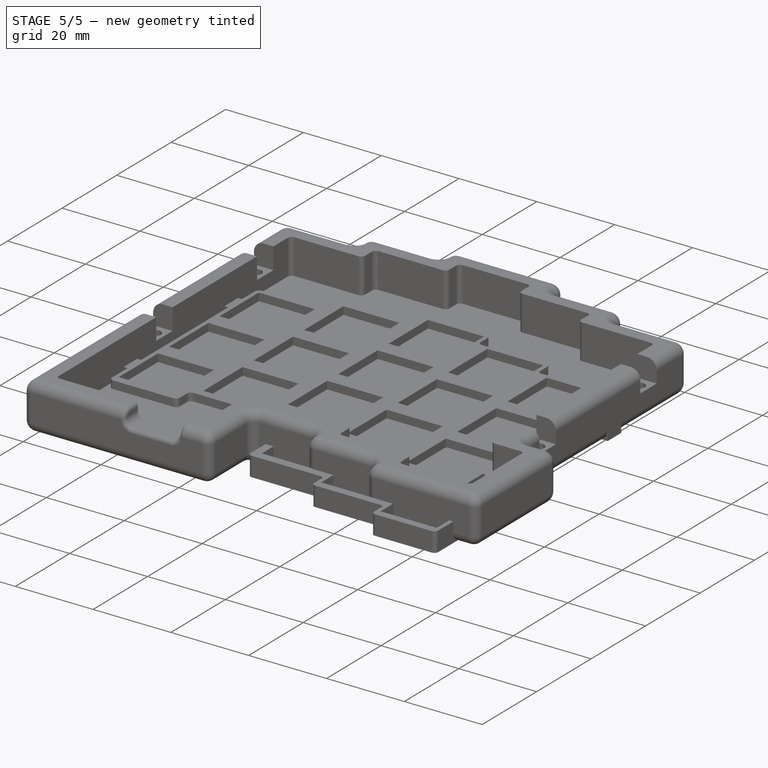
[diagram: stage 5 of 5 — iso view after this stage's code; geometry added in this stage tinted green]
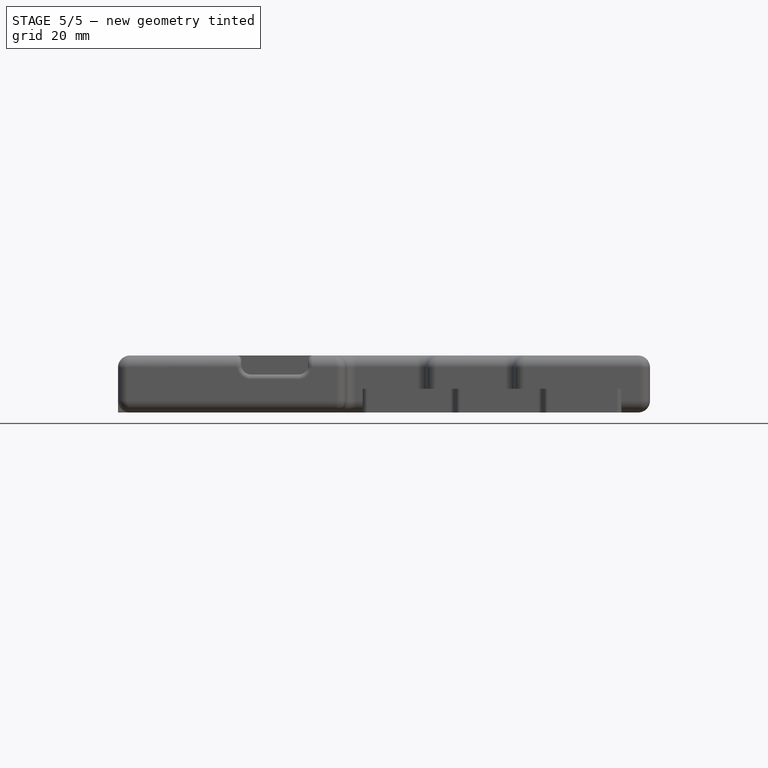
[diagram: stage 5 of 5 — front view after this stage's code; geometry added in this stage tinted green]
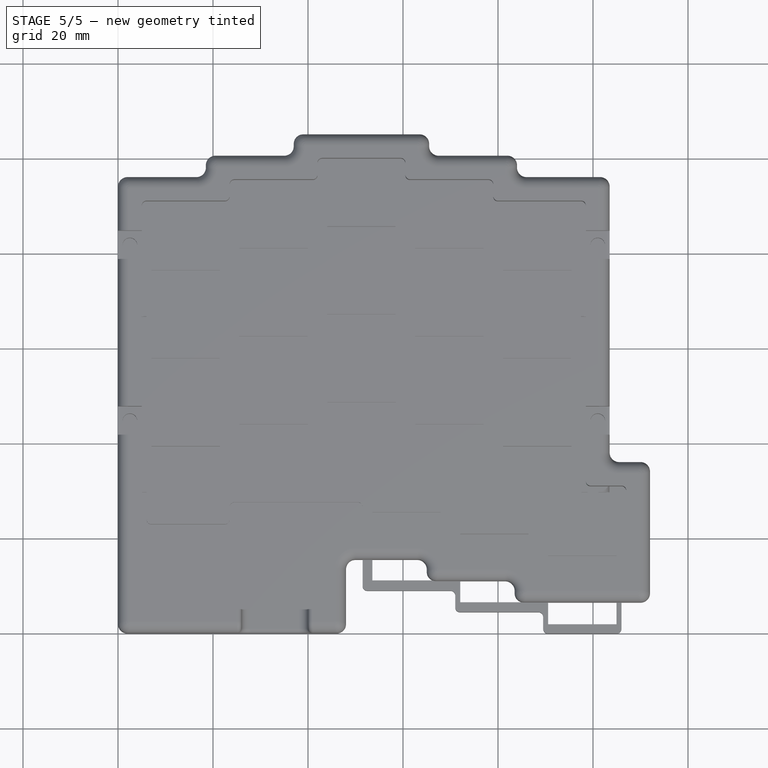
[diagram: stage 5 of 5 — top view after this stage's code; geometry added in this stage tinted green]
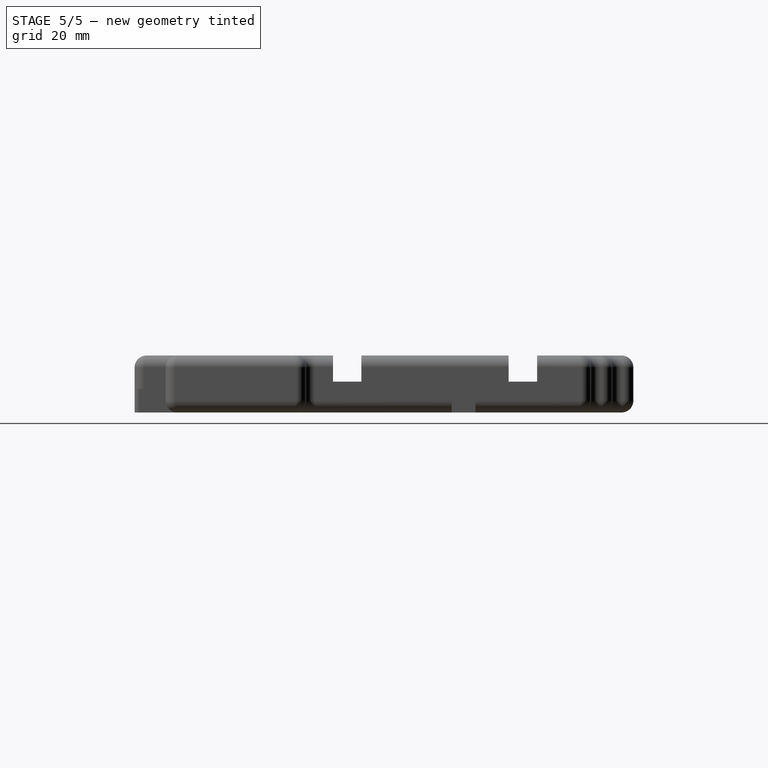
[diagram: stage 5 of 5 — right view after this stage's code; geometry added in this stage tinted green]
FEATURE [Sketcher::SketchObject] Sketch006
  FullyConstrained = true
  MapMode = 5
  Placement = pos=(0,0,5) rot=(0,0,1;0rad)
  Support = -> [Fillet003]
  sketch-geometry (9):
    g0: LineSegment StartX=0 StartY=0 StartZ=0 EndX=2.5 EndY=0 EndZ=0
    g1: LineSegment StartX=2.5 StartY=0 StartZ=0 EndX=2.5 EndY=32.25 EndZ=0
    g2: LineSegment StartX=2.5 StartY=32.25 StartZ=0 EndX=2.5 EndY=69.25 EndZ=0
    g3: LineSegment StartX=2.5 StartY=69.25 StartZ=0 EndX=101 EndY=69.25 EndZ=0
    g4: LineSegment StartX=2.5 StartY=32.25 StartZ=0 EndX=101 EndY=32.25 EndZ=0
    g5: Circle CenterX=2.5 CenterY=32.25 CenterZ=0 NormalX=0 NormalY=0 NormalZ=1 AngleXU=0 Radius=1.1
    g6: Circle CenterX=2.5 CenterY=69.25 CenterZ=0 NormalX=0 NormalY=0 NormalZ=1 AngleXU=0 Radius=1.1
    g7: Circle CenterX=101 CenterY=69.25 CenterZ=0 NormalX=0 NormalY=0 NormalZ=1 AngleXU=0 Radius=1.1
    g8: Circle CenterX=101 CenterY=32.25 CenterZ=0 NormalX=0 NormalY=0 NormalZ=1 AngleXU=0 Radius=1.1
  constraints (23):
    c: Coincident(g0,g-1)
    c: PointOnObject(g0,g-1)
    c: DistanceX(g0,g0) = 2.5
    c: Coincident(g1,g0)
    c: Vertical(g1)
    c: Coincident(g2,g1)
    c: Vertical(g2)
    c: DistanceY(g1,g1) = 32.25
    c: DistanceY(g2,g2) = 37
    c: Coincident(g3,g2)
    c: Horizontal(g3)
    c: DistanceX(g3,g3) = 98.5
    c: Coincident(g4,g1)
    c: Horizontal(g4)
    c: Equal(g3,g4)
    c: Coincident(g5,g1)
    c: Diameter(g5) = 2.2
    c: Coincident(g6,g2)
    c: Coincident(g7,g3)
    c: Coincident(g8,g4)
    c: Equal(g5,g6)
    c: Equal(g6,g7)
    c: Equal(g7,g8)
FEATURE [PartDesign::Pocket] Pocket004
  BaseFeature = -> Fillet003
  Length = 5
  Length2 = 100
  Profile = -> Sketch006
  Type = 0
FEATURE [Sketcher::SketchObject] Sketch007
  FullyConstrained = true
  MapMode = 5
  Placement = pos=(0,0,5) rot=(0,0,1;0rad)
  Support = -> [Pocket004]
  sketch-geometry (9):
    g0: LineSegment StartX=0 StartY=0 StartZ=0 EndX=2.5 EndY=0 EndZ=0
    g1: LineSegment StartX=2.5 StartY=0 StartZ=0 EndX=2.5 EndY=32.25 EndZ=0
    g2: Circle CenterX=2.5 CenterY=32.25 CenterZ=0 NormalX=0 NormalY=0 NormalZ=1 AngleXU=0 Radius=2.5
    g3: LineSegment StartX=2.5 StartY=32.25 StartZ=0 EndX=2.5 EndY=69.25 EndZ=0
    g4: LineSegment StartX=2.5 StartY=69.25 StartZ=0 EndX=101 EndY=69.25 EndZ=0
    g5: LineSegment StartX=2.5 StartY=32.25 StartZ=0 EndX=101 EndY=32.25 EndZ=0
    g6: Circle CenterX=2.5 CenterY=69.25 CenterZ=0 NormalX=0 NormalY=0 NormalZ=1 AngleXU=0 Radius=2.5
    g7: Circle CenterX=101 CenterY=69.25 CenterZ=0 NormalX=0 NormalY=0 NormalZ=1 AngleXU=0 Radius=2.5
    g8: Circle CenterX=101 CenterY=32.25 CenterZ=0 NormalX=0 NormalY=0 NormalZ=1 AngleXU=0 Radius=2.5
  constraints (23):
    c: Coincident(g0,g-1)
    c: PointOnObject(g0,g-1)
    c: DistanceX(g0,g0) = 2.5
    c: Coincident(g1,g0)
    c: DistanceY(g1,g1) = 32.25
    c: Coincident(g2,g1)
    c: Diameter(g2) = 5
    c: Coincident(g3,g2)
    c: Vertical(g3)
    c: Coincident(g4,g3)
    c: Horizontal(g4)
    c: Coincident(g5,g2)
    c: Horizontal(g5)
    c: Equal(g5,g4)
    c: DistanceY(g3,g3) = 37
    c: DistanceX(g4,g4) = 98.5
    c: Vertical(g1)
    c: Coincident(g6,g3)
    c: Coincident(g7,g4)
    c: Coincident(g8,g5)
    c: Equal(g2,g8)
    c: Equal(g8,g7)
    c: Equal(g7,g6)
FEATURE [PartDesign::Pocket] Pocket005
  BaseFeature = -> Pocket004
  Length = 2
  Length2 = 100
  Profile = -> Sketch007
  Type = 0
FEATURE [PartDesign::Fillet] Fillet004
  Base = -> Pocket005 [Edge260,Edge262,Edge264,Edge268,Edge270,Edge272,Edge276,Edge279,Edge283,Edge285,Edge292,Edge289,Edge269,Edge267,Edge265,Edge263,Edge261,Edge259,Edge252,Edge241,Edge248,Edge255]
  BaseFeature = -> Pocket005
  Radius = 1
  SupportTransform = false
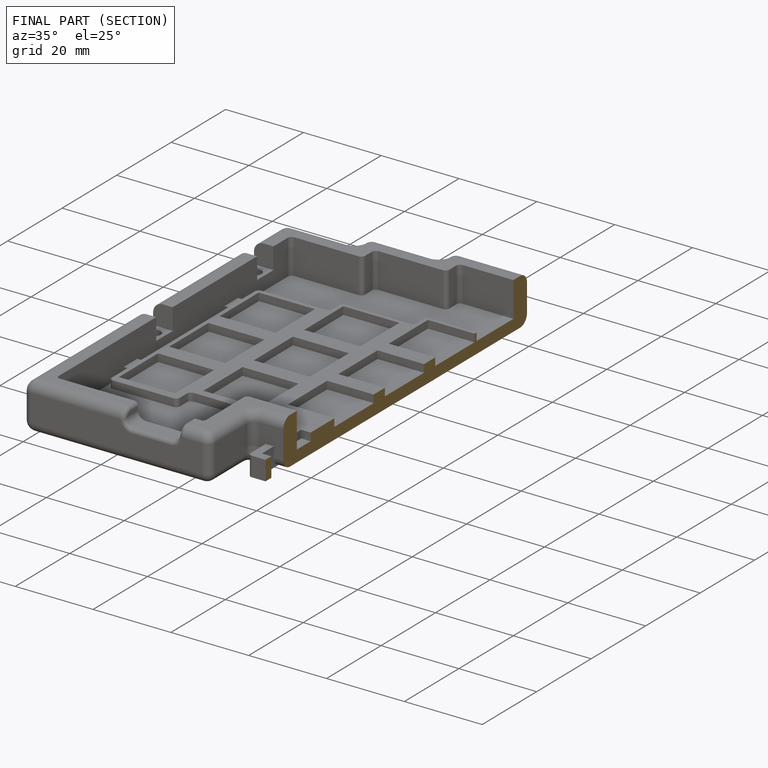
[diagram: finished part — half-section view (interior)]
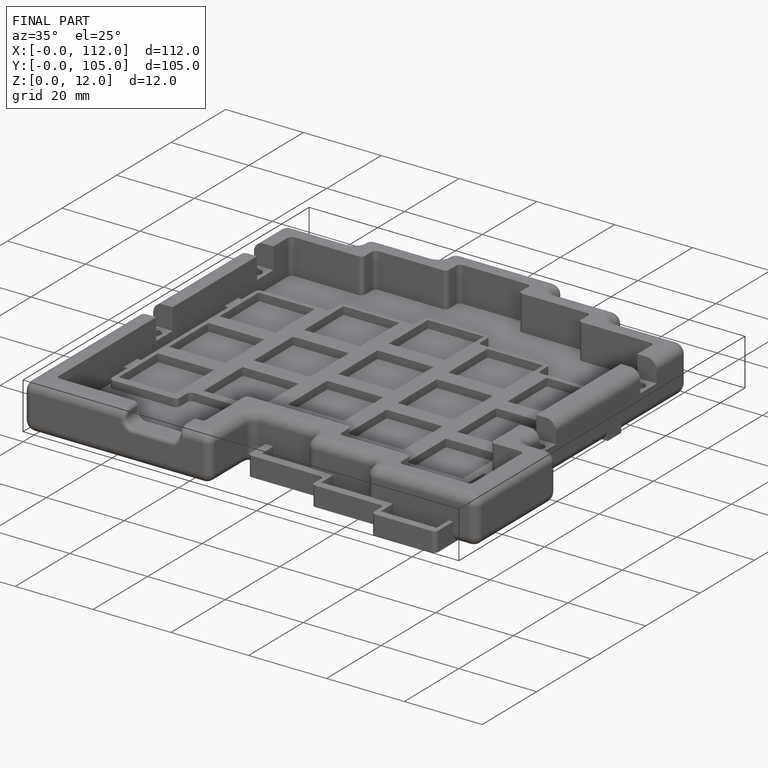
[diagram: finished part — iso view with bounding-box wireframe]
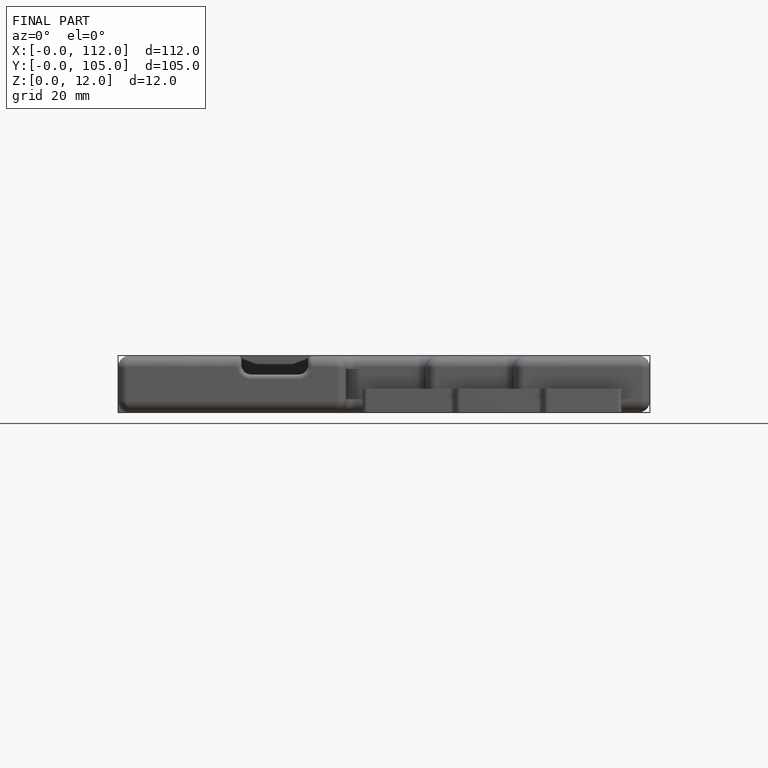
[diagram: finished part — front view with bounding-box wireframe]
